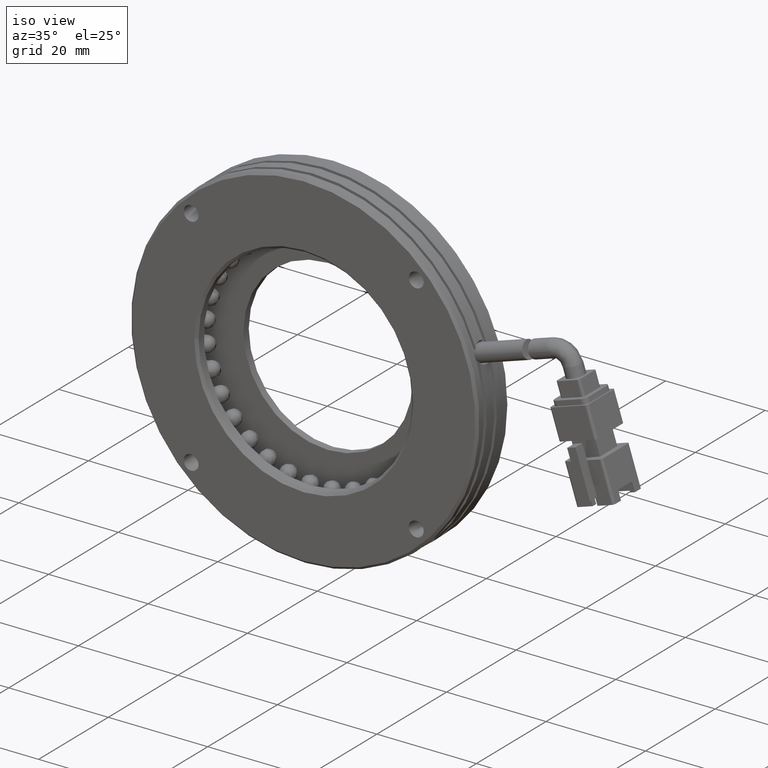
[diagram: clean part render]
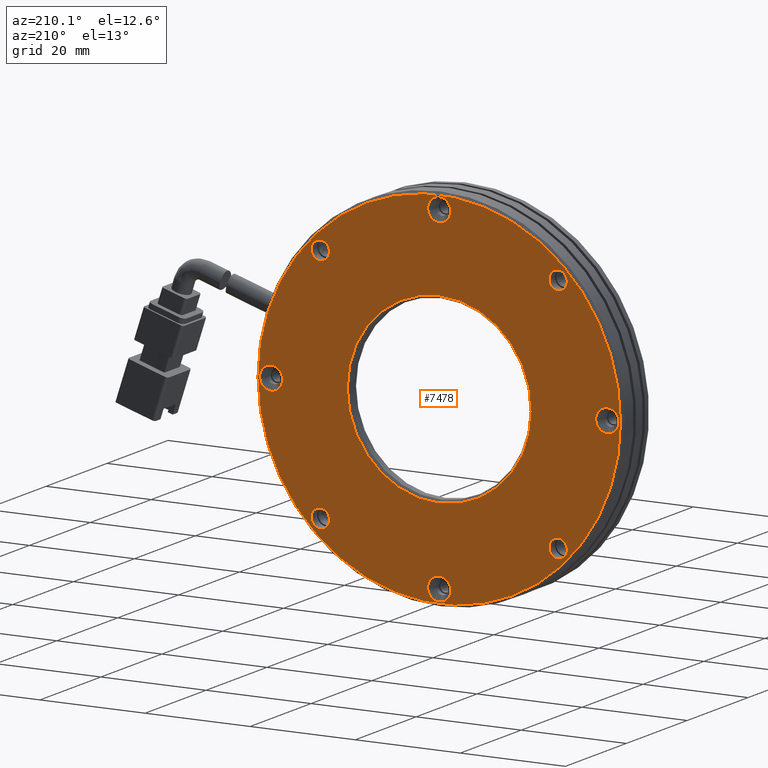
[diagram: tour spotlight — one face highlighted and labeled with its STEP entity id]
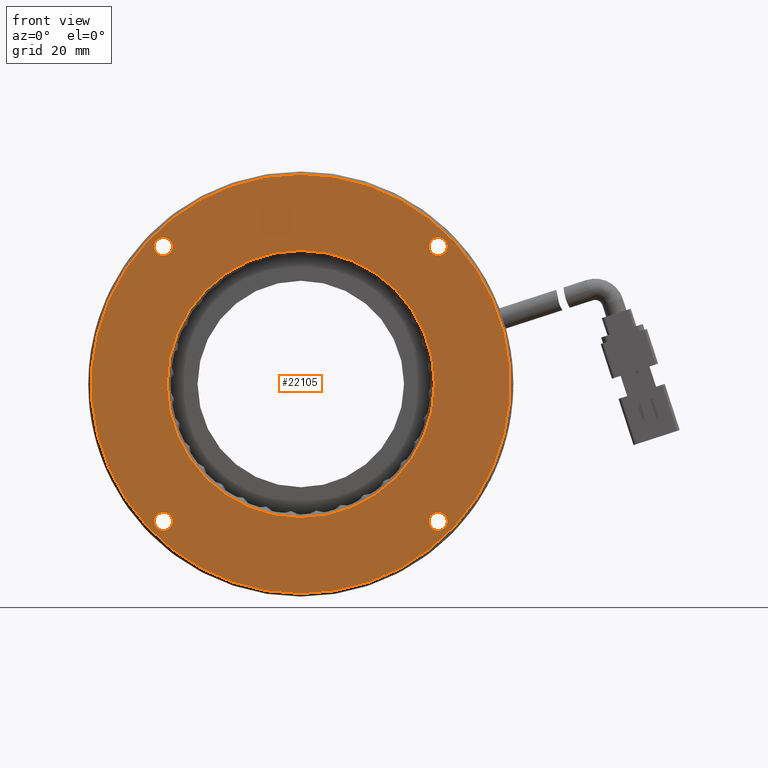
[diagram: tour spotlight — one face highlighted and labeled with its STEP entity id]
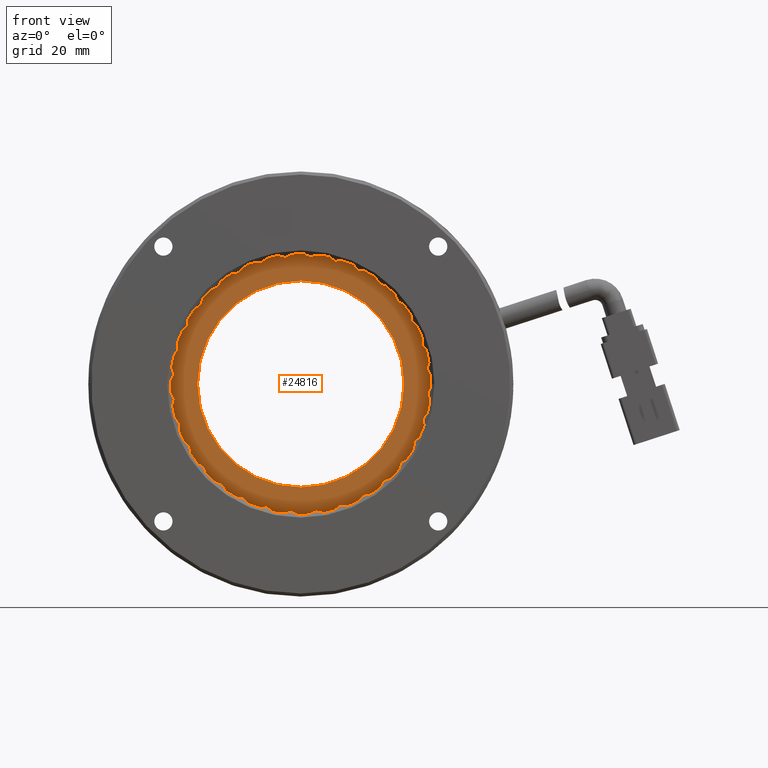
[diagram: tour spotlight — one face highlighted and labeled with its STEP entity id]
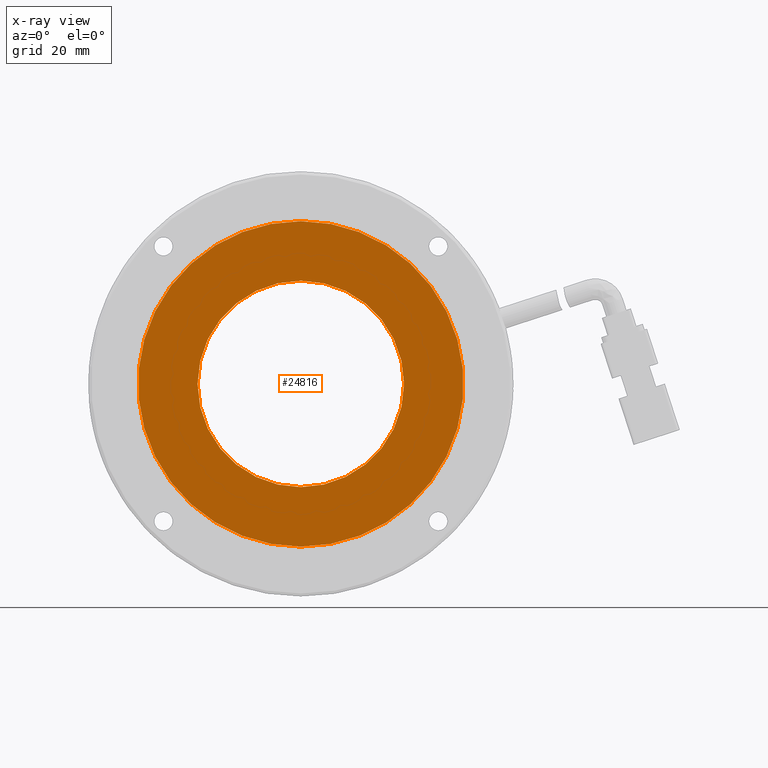
[diagram: x-ray of the same camera — body ghosted, this tour face saturated]
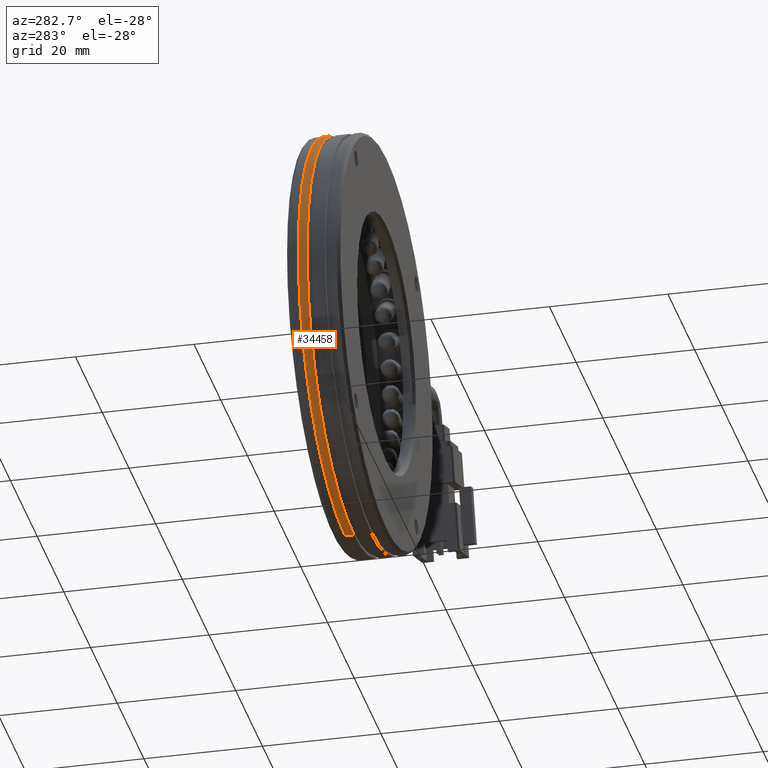
[diagram: tour spotlight — one face highlighted and labeled with its STEP entity id]
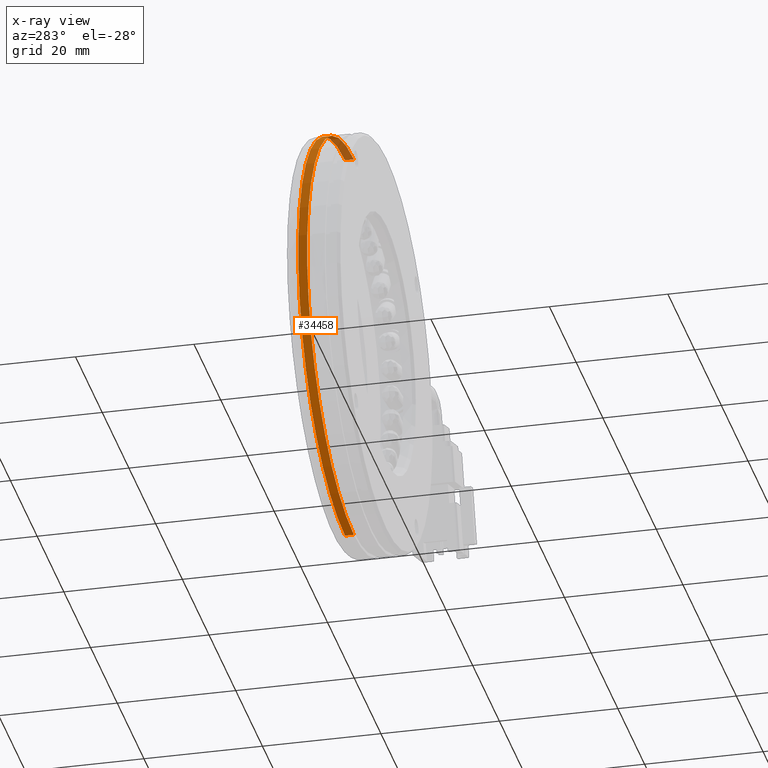
[diagram: x-ray of the same camera — body ghosted, this tour face saturated]
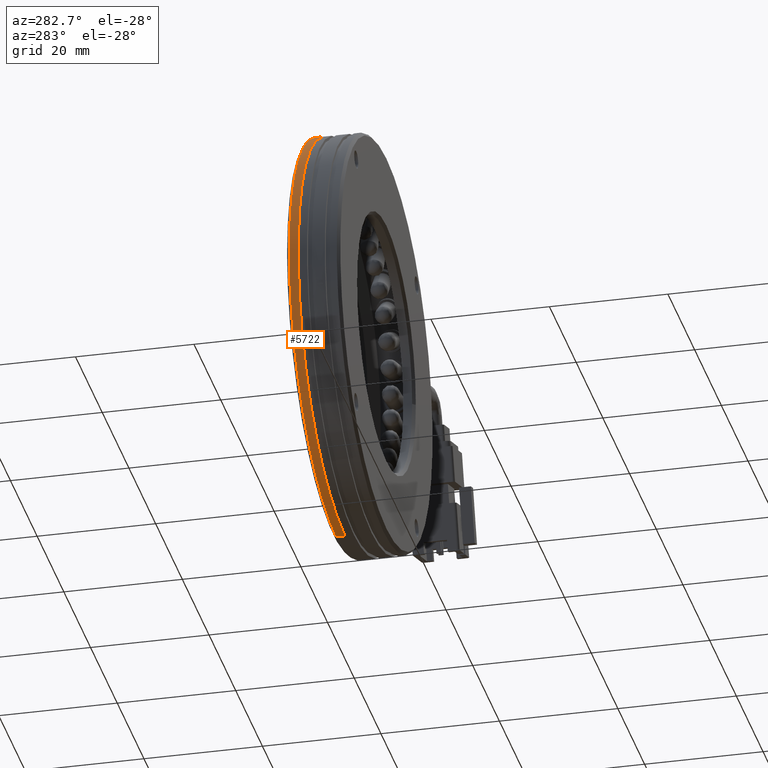
[diagram: tour spotlight — one face highlighted and labeled with its STEP entity id]
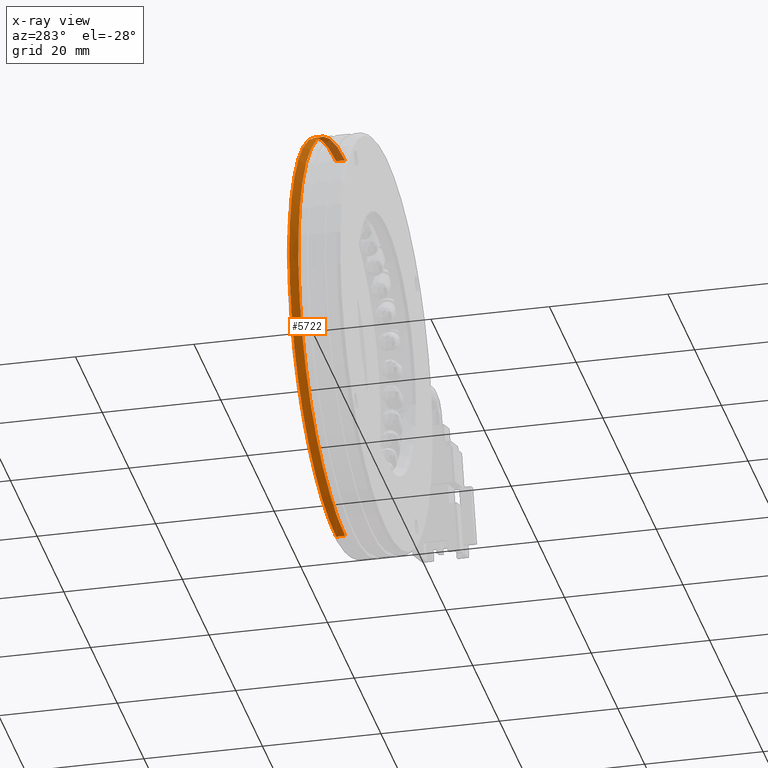
[diagram: x-ray of the same camera — body ghosted, this tour face saturated]
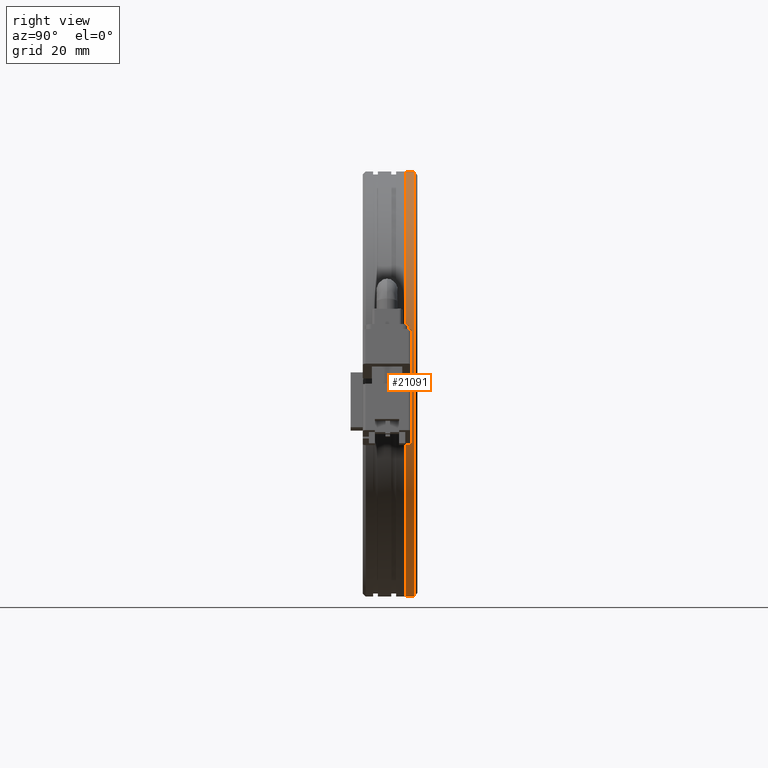
[diagram: tour spotlight — one face highlighted and labeled with its STEP entity id]
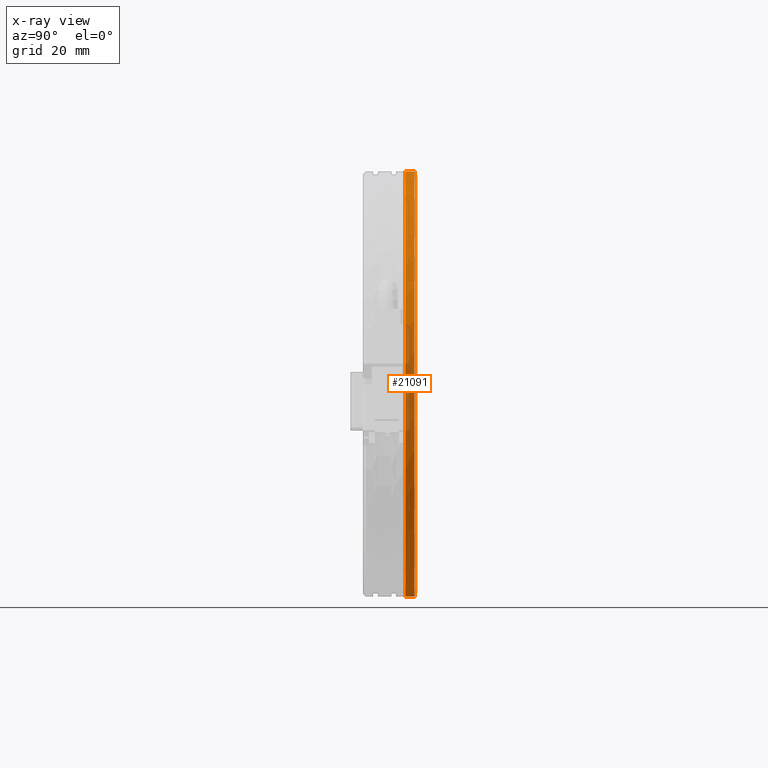
[diagram: x-ray of the same camera — body ghosted, this tour face saturated]
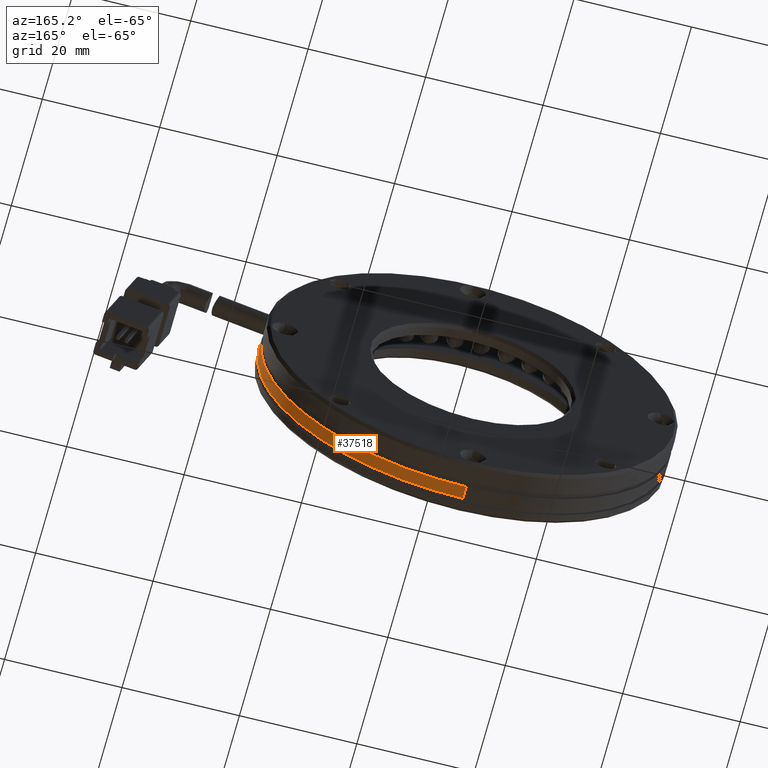
[diagram: tour spotlight — one face highlighted and labeled with its STEP entity id]
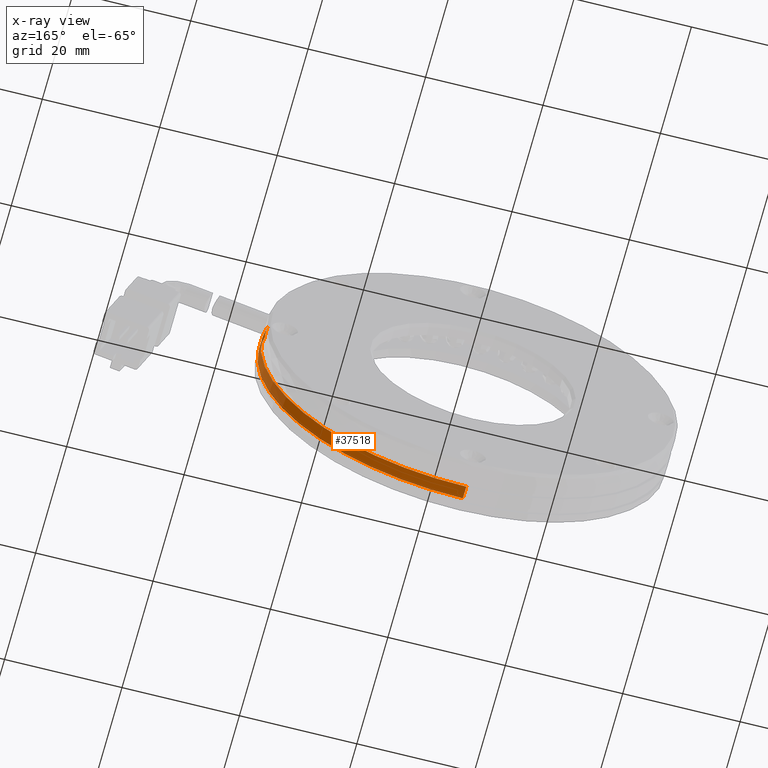
[diagram: x-ray of the same camera — body ghosted, this tour face saturated]
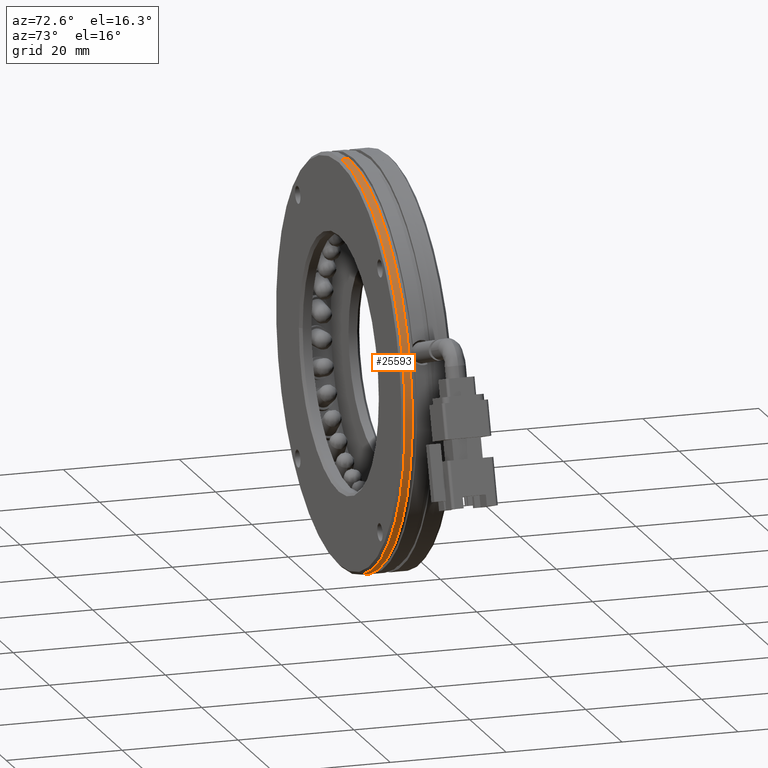
[diagram: tour spotlight — one face highlighted and labeled with its STEP entity id]
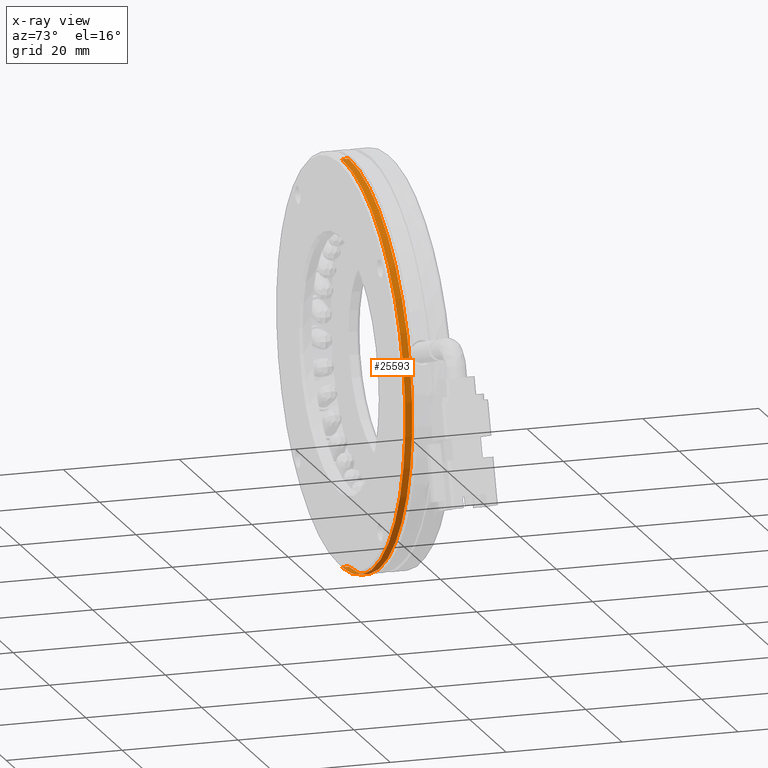
[diagram: x-ray of the same camera — body ghosted, this tour face saturated]
A machine part: a face-by-face anatomy tour. The part has 771 B-rep faces; the first image is the clean iso view, then the 8 largest visible faces are spotlighted one at a time (largest first), each with its STEP entity span.

Face 1 — auxiliary view, entity #7478. In plain terms, the highlighted planar face has unit normal (0, -1, 0).
Definition (entity closure, byte-faithful):
#110 = DIRECTION ( 'NONE',  ( -1.982541115402065400E-016, -1.000000000000000000, 0.0000000000000000000 ) ) ;
#143 = VERTEX_POINT ( 'NONE', #33336 ) ;
#212 = AXIS2_PLACEMENT_3D ( 'NONE', #7293, #29026, #10388 ) ;
#552 = CIRCLE ( 'NONE', #212, 2.199999999977081600 ) ;
#564 = CARTESIAN_POINT ( 'NONE',  ( -37.70929214490434600, 13.26020291534246800, -2.199999999959364700 ) ) ;
#943 = DIRECTION ( 'NONE',  ( 0.0000000000000000000, 0.0000000000000000000, 1.000000000000000000 ) ) ;
#1103 = DIRECTION ( 'NONE',  ( -0.0000000000000000000, 1.000000000000000000, 0.0000000000000000000 ) ) ;
#1303 = FACE_OUTER_BOUND ( 'NONE', #31803, .T. ) ;
#1769 = CIRCLE ( 'NONE', #23377, 17.50000000000000700 ) ;
#2228 = DIRECTION ( 'NONE',  ( 0.0000000000000000000, 0.0000000000000000000, 1.000000000000000000 ) ) ;
#2298 = EDGE_CURVE ( 'NONE', #16188, #25205, #18370, .T. ) ;
#2355 = AXIS2_PLACEMENT_3D ( 'NONE', #4401, #26062, #7508 ) ;
#2577 = ORIENTED_EDGE ( 'NONE', *, *, #30779, .F. ) ;
#2722 = DIRECTION ( 'NONE',  ( 0.0000000000000000000, 0.0000000000000000000, 1.000000000000000000 ) ) ;
#2983 = VERTEX_POINT ( 'NONE', #32999 ) ;
#3518 = CARTESIAN_POINT ( 'NONE',  ( 16.91812485306521900, 13.26020291540423700, 24.37741699796944800 ) ) ;
#3852 = VERTEX_POINT ( 'NONE', #38358 ) ;
#3877 = DIRECTION ( 'NONE',  ( -1.982541115402065400E-016, -1.000000000000000000, 0.0000000000000000000 ) ) ;
#4401 = CARTESIAN_POINT ( 'NONE',  ( -5.709292144904676300, 13.26020291539931200, 31.99999999999997900 ) ) ;
#4536 = EDGE_LOOP ( 'NONE', ( #10967, #6340 ) ) ;
#4547 = ORIENTED_EDGE ( 'NONE', *, *, #21877, .F. ) ;
#4617 = DIRECTION ( 'NONE',  ( -0.0000000000000000000, 1.000000000000000000, -0.0000000000000000000 ) ) ;
#4657 = CARTESIAN_POINT ( 'NONE',  ( -5.709292144904231300, 13.26020291539931200, -32.00000000000002100 ) ) ;
#4795 = CARTESIAN_POINT ( 'NONE',  ( -37.70929214490434600, 13.26020291534246800, 2.199999999959324700 ) ) ;
#4802 = CIRCLE ( 'NONE', #36469, 1.749999999999991100 ) ;
#5172 = VERTEX_POINT ( 'NONE', #38534 ) ;
#6042 = ORIENTED_EDGE ( 'NONE', *, *, #27675, .F. ) ;
#6340 = ORIENTED_EDGE ( 'NONE', *, *, #2298, .F. ) ;
#6924 = ORIENTED_EDGE ( 'NONE', *, *, #19580, .F. ) ;
#6959 = ORIENTED_EDGE ( 'NONE', *, *, #15343, .F. ) ;
#7293 = CARTESIAN_POINT ( 'NONE',  ( -5.709292144904231300, 13.26020291539931200, -32.00000000000002100 ) ) ;
#7478 = ADVANCED_FACE ( 'NONE', ( #18703, #10450, #35296, #34331, #26968, #26007, #17720, #9485, #1303, #33340 ), #37788, .F. ) ;
#7480 = EDGE_LOOP ( 'NONE', ( #6924, #4547 ) ) ;
#7508 = DIRECTION ( 'NONE',  ( 0.0000000000000000000, 0.0000000000000000000, 1.000000000000000000 ) ) ;
#7594 = ORIENTED_EDGE ( 'NONE', *, *, #13458, .F. ) ;
#7730 = DIRECTION ( 'NONE',  ( 0.0000000000000000000, 0.0000000000000000000, 1.000000000000000000 ) ) ;
#7772 = DIRECTION ( 'NONE',  ( -0.0000000000000000000, 1.000000000000000000, 0.0000000000000000000 ) ) ;
#7864 = CARTESIAN_POINT ( 'NONE',  ( -37.70929214490434600, 13.26020291534246800, -1.994931997373328200E-014 ) ) ;
#7972 = VERTEX_POINT ( 'NONE', #18771 ) ;
#8416 = EDGE_CURVE ( 'NONE', #143, #36141, #30378, .T. ) ;
#8705 = EDGE_CURVE ( 'NONE', #35353, #13213, #17687, .T. ) ;
#8878 = EDGE_CURVE ( 'NONE', #13213, #35353, #18168, .T. ) ;
#8959 = EDGE_CURVE ( 'NONE', #12107, #23204, #10384, .T. ) ;
#9250 = CIRCLE ( 'NONE', #13845, 1.749999999999991100 ) ;
#9320 = CARTESIAN_POINT ( 'NONE',  ( 28.79070785509566100, 13.26020291540425900, -2.081668171172168500E-014 ) ) ;
#9357 = ORIENTED_EDGE ( 'NONE', *, *, #25839, .F. ) ;
#9438 = ORIENTED_EDGE ( 'NONE', *, *, #16494, .F. ) ;
#9485 = FACE_BOUND ( 'NONE', #19047, .T. ) ;
#10035 = DIRECTION ( 'NONE',  ( -0.0000000000000000000, 1.000000000000000000, -0.0000000000000000000 ) ) ;
#10040 = CARTESIAN_POINT ( 'NONE',  ( 26.29070785509565800, 13.26020291534246800, -2.199999999958921500 ) ) ;
#10157 = AXIS2_PLACEMENT_3D ( 'NONE', #27124, #26962, #25369 ) ;
#10384 = CIRCLE ( 'NONE', #2355, 2.199999999998453000 ) ;
#10388 = DIRECTION ( 'NONE',  ( 0.0000000000000000000, 0.0000000000000000000, 1.000000000000000000 ) ) ;
#10450 = FACE_BOUND ( 'NONE', #40018, .T. ) ;
#10888 = DIRECTION ( 'NONE',  ( -0.0000000000000000000, 1.000000000000000000, 0.0000000000000000000 ) ) ;
#10962 = DIRECTION ( 'NONE',  ( 0.0000000000000000000, 0.0000000000000000000, 1.000000000000000000 ) ) ;
#10967 = ORIENTED_EDGE ( 'NONE', *, *, #20108, .F. ) ;
#11264 = DIRECTION ( 'NONE',  ( -0.0000000000000000000, 1.000000000000000000, -0.0000000000000000000 ) ) ;
#11334 = AXIS2_PLACEMENT_3D ( 'NONE', #32444, #13777, #35534 ) ;
#11360 = AXIS2_PLACEMENT_3D ( 'NONE', #22400, #3877, #25559 ) ;
#11403 = CARTESIAN_POINT ( 'NONE',  ( -28.33670914287390000, 13.26020291540423700, 22.62741699796946200 ) ) ;
#12107 = VERTEX_POINT ( 'NONE', #31218 ) ;
#12117 = ORIENTED_EDGE ( 'NONE', *, *, #12918, .F. ) ;
#12912 = CIRCLE ( 'NONE', #31623, 17.50000000000000700 ) ;
#12918 = EDGE_CURVE ( 'NONE', #40130, #12931, #23755, .T. ) ;
#12931 = VERTEX_POINT ( 'NONE', #4795 ) ;
#12988 = DIRECTION ( 'NONE',  ( 0.0000000000000000000, -1.000000000000000000, 0.0000000000000000000 ) ) ;
#13021 = CIRCLE ( 'NONE', #22403, 2.199999999959344700 ) ;
#13213 = VERTEX_POINT ( 'NONE', #9320 ) ;
#13446 = CARTESIAN_POINT ( 'NONE',  ( -28.33670914287374700, 13.26020291540423700, -22.62741699796966100 ) ) ;
#13458 = EDGE_CURVE ( 'NONE', #36141, #143, #39791, .T. ) ;
#13759 = ORIENTED_EDGE ( 'NONE', *, *, #8416, .F. ) ;
#13777 = DIRECTION ( 'NONE',  ( -0.0000000000000000000, 1.000000000000000000, 0.0000000000000000000 ) ) ;
#13845 = AXIS2_PLACEMENT_3D ( 'NONE', #13446, #35233, #16564 ) ;
#13957 = CIRCLE ( 'NONE', #16700, 2.199999999959123100 ) ;
#14539 = DIRECTION ( 'NONE',  ( 0.0000000000000000000, 0.0000000000000000000, 1.000000000000000000 ) ) ;
#15312 = CARTESIAN_POINT ( 'NONE',  ( 16.91812485306537200, 13.26020291540423700, -22.62741699796934800 ) ) ;
#15343 = EDGE_CURVE ( 'NONE', #5172, #19427, #9250, .T. ) ;
#16188 = VERTEX_POINT ( 'NONE', #34915 ) ;
#16494 = EDGE_CURVE ( 'NONE', #26678, #7972, #30204, .T. ) ;
#16522 = VERTEX_POINT ( 'NONE', #38753 ) ;
#16564 = DIRECTION ( 'NONE',  ( 0.0000000000000000000, 0.0000000000000000000, 1.000000000000000000 ) ) ;
#16700 = AXIS2_PLACEMENT_3D ( 'NONE', #26355, #7772, #29536 ) ;
#16918 = CARTESIAN_POINT ( 'NONE',  ( -28.33670914287390000, 13.26020291540423700, 20.87741699796946500 ) ) ;
#17172 = CARTESIAN_POINT ( 'NONE',  ( -28.33670914287374700, 13.26020291540423700, -20.87741699796966800 ) ) ;
#17687 = CIRCLE ( 'NONE', #26701, 34.50000000000000000 ) ;
#17720 = FACE_BOUND ( 'NONE', #28343, .T. ) ;
#17841 = AXIS2_PLACEMENT_3D ( 'NONE', #11403, #33203, #14539 ) ;
#18168 = CIRCLE ( 'NONE', #11360, 34.50000000000000000 ) ;
#18370 = CIRCLE ( 'NONE', #10157, 1.749999999999991100 ) ;
#18407 = DIRECTION ( 'NONE',  ( 0.0000000000000000000, 0.0000000000000000000, 1.000000000000000000 ) ) ;
#18611 = CARTESIAN_POINT ( 'NONE',  ( -5.709292144904342300, 13.26020291540426600, -2.081668171172168500E-014 ) ) ;
#18628 = EDGE_LOOP ( 'NONE', ( #13759, #7594 ) ) ;
#18703 = FACE_BOUND ( 'NONE', #7480, .T. ) ;
#18771 = CARTESIAN_POINT ( 'NONE',  ( -5.709292144904231300, 13.26020291539931200, -34.19999999997710200 ) ) ;
#19047 = EDGE_LOOP ( 'NONE', ( #34322, #12117 ) ) ;
#19126 = ORIENTED_EDGE ( 'NONE', *, *, #28634, .F. ) ;
#19427 = VERTEX_POINT ( 'NONE', #17172 ) ;
#19436 = DIRECTION ( 'NONE',  ( -0.0000000000000000000, 1.000000000000000000, 0.0000000000000000000 ) ) ;
#19508 = VERTEX_POINT ( 'NONE', #23970 ) ;
#19576 = AXIS2_PLACEMENT_3D ( 'NONE', #15312, #37112, #18407 ) ;
#19580 = EDGE_CURVE ( 'NONE', #2983, #3852, #34525, .T. ) ;
#19621 = CARTESIAN_POINT ( 'NONE',  ( 26.29070785509565800, 13.26020291534246800, 2.016616040823038200E-013 ) ) ;
#19866 = EDGE_CURVE ( 'NONE', #12931, #40130, #13021, .T. ) ;
#20108 = EDGE_CURVE ( 'NONE', #25205, #16188, #4802, .T. ) ;
#20722 = DIRECTION ( 'NONE',  ( -0.0000000000000000000, 1.000000000000000000, 0.0000000000000000000 ) ) ;
#21226 = DIRECTION ( 'NONE',  ( -0.0000000000000000000, 1.000000000000000000, -0.0000000000000000000 ) ) ;
#21547 = ORIENTED_EDGE ( 'NONE', *, *, #8878, .F. ) ;
#21596 = EDGE_CURVE ( 'NONE', #16522, #31588, #12912, .T. ) ;
#21722 = DIRECTION ( 'NONE',  ( 1.000000000000000000, -2.011273595335428600E-016, 0.0000000000000000000 ) ) ;
#21848 = AXIS2_PLACEMENT_3D ( 'NONE', #39939, #21226, #2722 ) ;
#21871 = AXIS2_PLACEMENT_3D ( 'NONE', #28673, #10035, #31864 ) ;
#21877 = EDGE_CURVE ( 'NONE', #3852, #2983, #31900, .T. ) ;
#22225 = CARTESIAN_POINT ( 'NONE',  ( -5.709292144904231300, 13.26020291539931200, -29.80000000002294100 ) ) ;
#22400 = CARTESIAN_POINT ( 'NONE',  ( -5.709292144904342300, 13.26020291540426600, -2.081668171172168500E-014 ) ) ;
#22403 = AXIS2_PLACEMENT_3D ( 'NONE', #38151, #19436, #943 ) ;
#22738 = DIRECTION ( 'NONE',  ( 0.0000000000000000000, 0.0000000000000000000, 1.000000000000000000 ) ) ;
#22810 = CARTESIAN_POINT ( 'NONE',  ( -40.20929214490434600, 13.26020291540427100, -1.656103408468463200E-014 ) ) ;
#23119 = AXIS2_PLACEMENT_3D ( 'NONE', #23153, #4617, #26260 ) ;
#23153 = CARTESIAN_POINT ( 'NONE',  ( -28.33670914287390000, 13.26020291540423700, 22.62741699796946200 ) ) ;
#23204 = VERTEX_POINT ( 'NONE', #34828 ) ;
#23377 = AXIS2_PLACEMENT_3D ( 'NONE', #39440, #20722, #2228 ) ;
#23755 = CIRCLE ( 'NONE', #30461, 2.199999999959344700 ) ;
#23970 = CARTESIAN_POINT ( 'NONE',  ( 26.29070785509565800, 13.26020291534246800, 2.199999999959324700 ) ) ;
#24587 = EDGE_CURVE ( 'NONE', #31588, #16522, #1769, .T. ) ;
#25205 = VERTEX_POINT ( 'NONE', #3518 ) ;
#25257 = CIRCLE ( 'NONE', #36341, 2.199999999959123100 ) ;
#25369 = DIRECTION ( 'NONE',  ( 0.0000000000000000000, 0.0000000000000000000, 1.000000000000000000 ) ) ;
#25559 = DIRECTION ( 'NONE',  ( 1.000000000000000000, -2.011273595335428600E-016, 0.0000000000000000000 ) ) ;
#25839 = EDGE_CURVE ( 'NONE', #19427, #5172, #30333, .T. ) ;
#25890 = ORIENTED_EDGE ( 'NONE', *, *, #8705, .F. ) ;
#26007 = FACE_BOUND ( 'NONE', #33737, .T. ) ;
#26062 = DIRECTION ( 'NONE',  ( -0.0000000000000000000, 1.000000000000000000, 0.0000000000000000000 ) ) ;
#26260 = DIRECTION ( 'NONE',  ( 0.0000000000000000000, 0.0000000000000000000, 1.000000000000000000 ) ) ;
#26299 = DIRECTION ( 'NONE',  ( -0.0000000000000000000, 1.000000000000000000, 0.0000000000000000000 ) ) ;
#26355 = CARTESIAN_POINT ( 'NONE',  ( 26.29070785509565800, 13.26020291534246800, 2.016616040823038200E-013 ) ) ;
#26678 = VERTEX_POINT ( 'NONE', #22225 ) ;
#26701 = AXIS2_PLACEMENT_3D ( 'NONE', #18611, #110, #21722 ) ;
#26962 = DIRECTION ( 'NONE',  ( -0.0000000000000000000, 1.000000000000000000, -0.0000000000000000000 ) ) ;
#26968 = FACE_BOUND ( 'NONE', #33443, .T. ) ;
#27124 = CARTESIAN_POINT ( 'NONE',  ( 16.91812485306521900, 13.26020291540423700, 22.62741699796945800 ) ) ;
#27675 = EDGE_CURVE ( 'NONE', #19508, #29353, #25257, .T. ) ;
#27681 = EDGE_CURVE ( 'NONE', #7972, #26678, #552, .T. ) ;
#28343 = EDGE_LOOP ( 'NONE', ( #9438, #29431 ) ) ;
#28502 = AXIS2_PLACEMENT_3D ( 'NONE', #4657, #26299, #7730 ) ;
#28634 = EDGE_CURVE ( 'NONE', #29353, #19508, #13957, .T. ) ;
#28673 = CARTESIAN_POINT ( 'NONE',  ( -28.33670914287374700, 13.26020291540423700, -22.62741699796966100 ) ) ;
#29026 = DIRECTION ( 'NONE',  ( -0.0000000000000000000, 1.000000000000000000, 0.0000000000000000000 ) ) ;
#29353 = VERTEX_POINT ( 'NONE', #10040 ) ;
#29431 = ORIENTED_EDGE ( 'NONE', *, *, #27681, .F. ) ;
#29536 = DIRECTION ( 'NONE',  ( 0.0000000000000000000, 0.0000000000000000000, 1.000000000000000000 ) ) ;
#29553 = CARTESIAN_POINT ( 'NONE',  ( -5.709292144904342300, 13.26020291540425200, -2.081668171172168500E-014 ) ) ;
#29624 = DIRECTION ( 'NONE',  ( -0.0000000000000000000, 1.000000000000000000, 0.0000000000000000000 ) ) ;
#29958 = CARTESIAN_POINT ( 'NONE',  ( 16.91812485306521900, 13.26020291540423700, 22.62741699796945800 ) ) ;
#30204 = CIRCLE ( 'NONE', #28502, 2.199999999977081600 ) ;
#30333 = CIRCLE ( 'NONE', #21871, 1.749999999999991100 ) ;
#30378 = CIRCLE ( 'NONE', #17841, 1.749999999999994700 ) ;
#30461 = AXIS2_PLACEMENT_3D ( 'NONE', #7864, #29624, #10962 ) ;
#30779 = EDGE_CURVE ( 'NONE', #23204, #12107, #37560, .T. ) ;
#31218 = CARTESIAN_POINT ( 'NONE',  ( -5.709292144904676300, 13.26020291539931200, 34.19999999999843300 ) ) ;
#31588 = VERTEX_POINT ( 'NONE', #33728 ) ;
#31623 = AXIS2_PLACEMENT_3D ( 'NONE', #29553, #10888, #32678 ) ;
#31679 = CARTESIAN_POINT ( 'NONE',  ( -22.70929214490434600, 13.26020291540425200, -2.081668171172168500E-014 ) ) ;
#31723 = EDGE_LOOP ( 'NONE', ( #33780, #37648 ) ) ;
#31803 = EDGE_LOOP ( 'NONE', ( #21547, #25890 ) ) ;
#31864 = DIRECTION ( 'NONE',  ( 0.0000000000000000000, 0.0000000000000000000, 1.000000000000000000 ) ) ;
#31900 = CIRCLE ( 'NONE', #19576, 1.749999999999991100 ) ;
#32444 = CARTESIAN_POINT ( 'NONE',  ( -5.709292144904676300, 13.26020291539931200, 31.99999999999997900 ) ) ;
#32678 = DIRECTION ( 'NONE',  ( 0.0000000000000000000, 0.0000000000000000000, 1.000000000000000000 ) ) ;
#32999 = CARTESIAN_POINT ( 'NONE',  ( 16.91812485306537200, 13.26020291540423700, -20.87741699796935500 ) ) ;
#33059 = DIRECTION ( 'NONE',  ( 0.0000000000000000000, 0.0000000000000000000, 1.000000000000000000 ) ) ;
#33203 = DIRECTION ( 'NONE',  ( -0.0000000000000000000, 1.000000000000000000, -0.0000000000000000000 ) ) ;
#33336 = CARTESIAN_POINT ( 'NONE',  ( -28.33670914287390000, 13.26020291540423700, 24.37741699796945500 ) ) ;
#33340 = FACE_BOUND ( 'NONE', #31723, .T. ) ;
#33443 = EDGE_LOOP ( 'NONE', ( #36014, #2577 ) ) ;
#33728 = CARTESIAN_POINT ( 'NONE',  ( -5.709292144904342300, 13.26020291540425200, 17.49999999999998900 ) ) ;
#33737 = EDGE_LOOP ( 'NONE', ( #6042, #19126 ) ) ;
#33780 = ORIENTED_EDGE ( 'NONE', *, *, #24587, .F. ) ;
#34322 = ORIENTED_EDGE ( 'NONE', *, *, #19866, .F. ) ;
#34331 = FACE_BOUND ( 'NONE', #4536, .T. ) ;
#34525 = CIRCLE ( 'NONE', #21848, 1.749999999999991100 ) ;
#34784 = DIRECTION ( 'NONE',  ( 0.0000000000000000000, -0.0000000000000000000, -1.000000000000000000 ) ) ;
#34828 = CARTESIAN_POINT ( 'NONE',  ( -5.709292144904676300, 13.26020291539931200, 29.80000000000152800 ) ) ;
#34915 = CARTESIAN_POINT ( 'NONE',  ( 16.91812485306521900, 13.26020291540423700, 20.87741699796946500 ) ) ;
#35233 = DIRECTION ( 'NONE',  ( -0.0000000000000000000, 1.000000000000000000, -0.0000000000000000000 ) ) ;
#35296 = FACE_BOUND ( 'NONE', #18628, .T. ) ;
#35353 = VERTEX_POINT ( 'NONE', #22810 ) ;
#35534 = DIRECTION ( 'NONE',  ( 0.0000000000000000000, 0.0000000000000000000, 1.000000000000000000 ) ) ;
#36014 = ORIENTED_EDGE ( 'NONE', *, *, #8959, .F. ) ;
#36141 = VERTEX_POINT ( 'NONE', #16918 ) ;
#36341 = AXIS2_PLACEMENT_3D ( 'NONE', #19621, #1103, #22738 ) ;
#36469 = AXIS2_PLACEMENT_3D ( 'NONE', #29958, #11264, #33059 ) ;
#37112 = DIRECTION ( 'NONE',  ( -0.0000000000000000000, 1.000000000000000000, -0.0000000000000000000 ) ) ;
#37560 = CIRCLE ( 'NONE', #11334, 2.199999999998453000 ) ;
#37648 = ORIENTED_EDGE ( 'NONE', *, *, #21596, .F. ) ;
#37788 = PLANE ( 'NONE',  #38226 ) ;
#38151 = CARTESIAN_POINT ( 'NONE',  ( -37.70929214490434600, 13.26020291534246800, -1.994931997373328200E-014 ) ) ;
#38226 = AXIS2_PLACEMENT_3D ( 'NONE', #31679, #12988, #34784 ) ;
#38358 = CARTESIAN_POINT ( 'NONE',  ( 16.91812485306537200, 13.26020291540423700, -24.37741699796933800 ) ) ;
#38534 = CARTESIAN_POINT ( 'NONE',  ( -28.33670914287374700, 13.26020291540423700, -24.37741699796965000 ) ) ;
#38753 = CARTESIAN_POINT ( 'NONE',  ( -5.709292144904340600, 13.26020291540425200, -17.50000000000002800 ) ) ;
#39440 = CARTESIAN_POINT ( 'NONE',  ( -5.709292144904342300, 13.26020291540425200, -2.081668171172168500E-014 ) ) ;
#39791 = CIRCLE ( 'NONE', #23119, 1.749999999999994700 ) ;
#39939 = CARTESIAN_POINT ( 'NONE',  ( 16.91812485306537200, 13.26020291540423700, -22.62741699796934800 ) ) ;
#40018 = EDGE_LOOP ( 'NONE', ( #9357, #6959 ) ) ;
#40130 = VERTEX_POINT ( 'NONE', #564 ) ;

Face 2 — front view, entity #22105. In plain terms, the highlighted planar face has unit normal (0, 1, 0).
Definition (entity closure, byte-faithful):
#43 = VERTEX_POINT ( 'NONE', #27115 ) ;
#60 = DIRECTION ( 'NONE',  ( 0.0000000000000000000, 0.0000000000000000000, 1.000000000000000000 ) ) ;
#680 = ORIENTED_EDGE ( 'NONE', *, *, #22191, .F. ) ;
#779 = FACE_BOUND ( 'NONE', #6378, .T. ) ;
#900 = DIRECTION ( 'NONE',  ( 0.0000000000000000000, 0.0000000000000000000, 1.000000000000000000 ) ) ;
#1737 = FACE_BOUND ( 'NONE', #4508, .T. ) ;
#2397 = DIRECTION ( 'NONE',  ( -0.0000000000000000000, 1.000000000000000000, 0.0000000000000000000 ) ) ;
#2484 = CARTESIAN_POINT ( 'NONE',  ( -28.33670914287428400, 4.260202915404256900, 24.12741699796931600 ) ) ;
#3098 = VERTEX_POINT ( 'NONE', #2484 ) ;
#3195 = CARTESIAN_POINT ( 'NONE',  ( 16.91812485306483900, 4.260202915404256900, 24.12741699796962900 ) ) ;
#3380 = VERTEX_POINT ( 'NONE', #3195 ) ;
#3624 = VERTEX_POINT ( 'NONE', #35357 ) ;
#3638 = ORIENTED_EDGE ( 'NONE', *, *, #38736, .F. ) ;
#4332 = AXIS2_PLACEMENT_3D ( 'NONE', #13897, #35655, #16997 ) ;
#4508 = EDGE_LOOP ( 'NONE', ( #3638, #680 ) ) ;
#4527 = CIRCLE ( 'NONE', #4332, 1.499999999999990900 ) ;
#4624 = CARTESIAN_POINT ( 'NONE',  ( -28.33670914287380800, 4.260202915404256900, -22.62741699796980300 ) ) ;
#4822 = CARTESIAN_POINT ( 'NONE',  ( 16.29070785509543000, 4.260202915404253300, 0.0000000000000000000 ) ) ;
#5124 = AXIS2_PLACEMENT_3D ( 'NONE', #29975, #11293, #17091 ) ;
#5168 = CARTESIAN_POINT ( 'NONE',  ( -27.70929214490455900, 4.260202915404260400, 2.694222958124176400E-015 ) ) ;
#5242 = DIRECTION ( 'NONE',  ( -1.577021341797097600E-016, -1.000000000000000000, 0.0000000000000000000 ) ) ;
#5398 = CARTESIAN_POINT ( 'NONE',  ( -28.33670914287380800, 4.260202915404256900, -22.62741699796980300 ) ) ;
#5437 = CARTESIAN_POINT ( 'NONE',  ( -28.33670914287380800, 4.260202915404256900, -24.12741699796979200 ) ) ;
#6060 = EDGE_CURVE ( 'NONE', #12273, #43, #18964, .T. ) ;
#6378 = EDGE_LOOP ( 'NONE', ( #38965, #37718 ) ) ;
#6890 = ORIENTED_EDGE ( 'NONE', *, *, #37865, .F. ) ;
#7698 = DIRECTION ( 'NONE',  ( 0.0000000000000000000, -1.000000000000000000, 0.0000000000000000000 ) ) ;
#7705 = DIRECTION ( 'NONE',  ( 0.0000000000000000000, 0.0000000000000000000, 1.000000000000000000 ) ) ;
#8497 = DIRECTION ( 'NONE',  ( 0.0000000000000000000, 0.0000000000000000000, 1.000000000000000000 ) ) ;
#8548 = AXIS2_PLACEMENT_3D ( 'NONE', #37247, #18558, #60 ) ;
#9717 = AXIS2_PLACEMENT_3D ( 'NONE', #28906, #10266, #32071 ) ;
#10015 = CIRCLE ( 'NONE', #28597, 21.99999999999999600 ) ;
#10266 = DIRECTION ( 'NONE',  ( 0.0000000000000000000, 1.000000000000000000, 0.0000000000000000000 ) ) ;
#10646 = AXIS2_PLACEMENT_3D ( 'NONE', #20894, #2397, #24062 ) ;
#10650 = AXIS2_PLACEMENT_3D ( 'NONE', #5398, #27076, #8497 ) ;
#11017 = VERTEX_POINT ( 'NONE', #23218 ) ;
#11176 = DIRECTION ( 'NONE',  ( 0.0000000000000000000, -1.000000000000000000, 0.0000000000000000000 ) ) ;
#11293 = DIRECTION ( 'NONE',  ( 0.0000000000000000000, -1.000000000000000000, 0.0000000000000000000 ) ) ;
#11655 = VERTEX_POINT ( 'NONE', #22207 ) ;
#11750 = AXIS2_PLACEMENT_3D ( 'NONE', #28321, #28262, #28127 ) ;
#11966 = CIRCLE ( 'NONE', #8548, 1.499999999999994400 ) ;
#12273 = VERTEX_POINT ( 'NONE', #19420 ) ;
#13084 = VERTEX_POINT ( 'NONE', #5437 ) ;
#13662 = DIRECTION ( 'NONE',  ( -1.577021341797097600E-016, -1.000000000000000000, 0.0000000000000000000 ) ) ;
#13730 = CIRCLE ( 'NONE', #10650, 1.499999999999990900 ) ;
#13897 = CARTESIAN_POINT ( 'NONE',  ( 16.91812485306483900, 4.260202915404256900, 22.62741699796964000 ) ) ;
#15300 = ORIENTED_EDGE ( 'NONE', *, *, #37544, .F. ) ;
#15469 = CARTESIAN_POINT ( 'NONE',  ( -28.33670914287428400, 4.260202915404256900, 21.12741699796932700 ) ) ;
#15807 = EDGE_LOOP ( 'NONE', ( #27748, #18039 ) ) ;
#16246 = FACE_OUTER_BOUND ( 'NONE', #15807, .T. ) ;
#16613 = EDGE_LOOP ( 'NONE', ( #31125, #34480 ) ) ;
#16997 = DIRECTION ( 'NONE',  ( 0.0000000000000000000, 0.0000000000000000000, 1.000000000000000000 ) ) ;
#17091 = DIRECTION ( 'NONE',  ( 0.0000000000000000000, 0.0000000000000000000, 1.000000000000000000 ) ) ;
#17195 = FACE_BOUND ( 'NONE', #22391, .T. ) ;
#17336 = CIRCLE ( 'NONE', #10646, 34.50000000000004300 ) ;
#18039 = ORIENTED_EDGE ( 'NONE', *, *, #20231, .F. ) ;
#18558 = DIRECTION ( 'NONE',  ( 0.0000000000000000000, -1.000000000000000000, 0.0000000000000000000 ) ) ;
#18964 = CIRCLE ( 'NONE', #11750, 1.499999999999990900 ) ;
#19380 = DIRECTION ( 'NONE',  ( -0.0000000000000000000, 1.000000000000000000, 0.0000000000000000000 ) ) ;
#19420 = CARTESIAN_POINT ( 'NONE',  ( 16.91812485306530800, 4.260202915404256900, -21.12741699796917400 ) ) ;
#19452 = AXIS2_PLACEMENT_3D ( 'NONE', #29860, #11176, #32965 ) ;
#20231 = EDGE_CURVE ( 'NONE', #3624, #22121, #17336, .T. ) ;
#20894 = CARTESIAN_POINT ( 'NONE',  ( -5.709292144904565300, 4.260202915404256900, 0.0000000000000000000 ) ) ;
#21008 = ORIENTED_EDGE ( 'NONE', *, *, #27588, .F. ) ;
#21063 = VERTEX_POINT ( 'NONE', #5168 ) ;
#22105 = ADVANCED_FACE ( 'NONE', ( #779, #17195, #1737, #32800, #24498, #16246 ), #28767, .F. ) ;
#22121 = VERTEX_POINT ( 'NONE', #32206 ) ;
#22191 = EDGE_CURVE ( 'NONE', #13084, #11017, #36893, .T. ) ;
#22207 = CARTESIAN_POINT ( 'NONE',  ( 16.91812485306483900, 4.260202915404256900, 21.12741699796964700 ) ) ;
#22391 = EDGE_LOOP ( 'NONE', ( #6890, #15300 ) ) ;
#23120 = CIRCLE ( 'NONE', #38686, 21.99999999999999600 ) ;
#23218 = CARTESIAN_POINT ( 'NONE',  ( -28.33670914287380800, 4.260202915404256900, -21.12741699796981000 ) ) ;
#23788 = CARTESIAN_POINT ( 'NONE',  ( -5.709292144904565300, 4.260202915404256900, 0.0000000000000000000 ) ) ;
#23976 = VERTEX_POINT ( 'NONE', #4822 ) ;
#24062 = DIRECTION ( 'NONE',  ( 0.0000000000000000000, 0.0000000000000000000, 1.000000000000000000 ) ) ;
#24088 = CIRCLE ( 'NONE', #19452, 1.499999999999994400 ) ;
#24498 = FACE_BOUND ( 'NONE', #16613, .T. ) ;
#24768 = CIRCLE ( 'NONE', #5124, 1.499999999999990900 ) ;
#26263 = CARTESIAN_POINT ( 'NONE',  ( 16.91812485306483900, 4.260202915404256900, 22.62741699796964000 ) ) ;
#26270 = DIRECTION ( 'NONE',  ( 0.0000000000000000000, -1.000000000000000000, 0.0000000000000000000 ) ) ;
#26915 = DIRECTION ( 'NONE',  ( 1.000000000000000000, -1.577021341797097600E-016, 0.0000000000000000000 ) ) ;
#26939 = CIRCLE ( 'NONE', #36013, 1.499999999999990900 ) ;
#27076 = DIRECTION ( 'NONE',  ( 0.0000000000000000000, -1.000000000000000000, 0.0000000000000000000 ) ) ;
#27115 = CARTESIAN_POINT ( 'NONE',  ( 16.91812485306530800, 4.260202915404256900, -24.12741699796915600 ) ) ;
#27349 = AXIS2_PLACEMENT_3D ( 'NONE', #38097, #19380, #900 ) ;
#27588 = EDGE_CURVE ( 'NONE', #43, #12273, #24768, .T. ) ;
#27748 = ORIENTED_EDGE ( 'NONE', *, *, #33448, .F. ) ;
#28127 = DIRECTION ( 'NONE',  ( 0.0000000000000000000, 0.0000000000000000000, 1.000000000000000000 ) ) ;
#28203 = EDGE_LOOP ( 'NONE', ( #30224, #21008 ) ) ;
#28262 = DIRECTION ( 'NONE',  ( 0.0000000000000000000, -1.000000000000000000, 0.0000000000000000000 ) ) ;
#28321 = CARTESIAN_POINT ( 'NONE',  ( 16.91812485306530800, 4.260202915404256900, -22.62741699796916700 ) ) ;
#28597 = AXIS2_PLACEMENT_3D ( 'NONE', #32340, #13662, #35435 ) ;
#28767 = PLANE ( 'NONE',  #9717 ) ;
#28906 = CARTESIAN_POINT ( 'NONE',  ( -40.70929214490455900, 4.260202915404256900, 0.0000000000000000000 ) ) ;
#28940 = EDGE_CURVE ( 'NONE', #21063, #23976, #23120, .T. ) ;
#29450 = DIRECTION ( 'NONE',  ( 0.0000000000000000000, 0.0000000000000000000, 1.000000000000000000 ) ) ;
#29802 = VERTEX_POINT ( 'NONE', #15469 ) ;
#29860 = CARTESIAN_POINT ( 'NONE',  ( -28.33670914287428400, 4.260202915404256900, 22.62741699796932300 ) ) ;
#29975 = CARTESIAN_POINT ( 'NONE',  ( 16.91812485306530800, 4.260202915404256900, -22.62741699796916700 ) ) ;
#30224 = ORIENTED_EDGE ( 'NONE', *, *, #6060, .F. ) ;
#31125 = ORIENTED_EDGE ( 'NONE', *, *, #37793, .F. ) ;
#32071 = DIRECTION ( 'NONE',  ( 0.0000000000000000000, -0.0000000000000000000, 1.000000000000000000 ) ) ;
#32206 = CARTESIAN_POINT ( 'NONE',  ( -5.709292144904565300, 4.260202915404256900, 34.50000000000004300 ) ) ;
#32340 = CARTESIAN_POINT ( 'NONE',  ( -5.709292144904565300, 4.260202915404256900, 0.0000000000000000000 ) ) ;
#32658 = AXIS2_PLACEMENT_3D ( 'NONE', #4624, #26270, #7705 ) ;
#32800 = FACE_BOUND ( 'NONE', #28203, .T. ) ;
#32965 = DIRECTION ( 'NONE',  ( 0.0000000000000000000, 0.0000000000000000000, 1.000000000000000000 ) ) ;
#33448 = EDGE_CURVE ( 'NONE', #22121, #3624, #37288, .T. ) ;
#34227 = EDGE_CURVE ( 'NONE', #11655, #3380, #26939, .T. ) ;
#34480 = ORIENTED_EDGE ( 'NONE', *, *, #28940, .F. ) ;
#34916 = EDGE_CURVE ( 'NONE', #3380, #11655, #4527, .T. ) ;
#35357 = CARTESIAN_POINT ( 'NONE',  ( -5.709292144904560800, 4.260202915404256900, -34.50000000000004300 ) ) ;
#35435 = DIRECTION ( 'NONE',  ( 1.000000000000000000, -1.577021341797097600E-016, 0.0000000000000000000 ) ) ;
#35655 = DIRECTION ( 'NONE',  ( 0.0000000000000000000, -1.000000000000000000, 0.0000000000000000000 ) ) ;
#36013 = AXIS2_PLACEMENT_3D ( 'NONE', #26263, #7698, #29450 ) ;
#36893 = CIRCLE ( 'NONE', #32658, 1.499999999999990900 ) ;
#37247 = CARTESIAN_POINT ( 'NONE',  ( -28.33670914287428400, 4.260202915404256900, 22.62741699796932300 ) ) ;
#37288 = CIRCLE ( 'NONE', #27349, 34.50000000000004300 ) ;
#37544 = EDGE_CURVE ( 'NONE', #29802, #3098, #11966, .T. ) ;
#37718 = ORIENTED_EDGE ( 'NONE', *, *, #34227, .F. ) ;
#37793 = EDGE_CURVE ( 'NONE', #23976, #21063, #10015, .T. ) ;
#37865 = EDGE_CURVE ( 'NONE', #3098, #29802, #24088, .T. ) ;
#38097 = CARTESIAN_POINT ( 'NONE',  ( -5.709292144904565300, 4.260202915404256900, 0.0000000000000000000 ) ) ;
#38686 = AXIS2_PLACEMENT_3D ( 'NONE', #23788, #5242, #26915 ) ;
#38736 = EDGE_CURVE ( 'NONE', #11017, #13084, #13730, .T. ) ;
#38965 = ORIENTED_EDGE ( 'NONE', *, *, #34916, .F. ) ;

Face 3 — front view, entity #24816. An x-ray twin of the same camera follows (body ghosted, this face saturated) — the face is partly hidden behind the body. In plain terms, the highlighted planar face has unit normal (0, 1, 0).
Definition (entity closure, byte-faithful):
#579 = PLANE ( 'NONE',  #15600 ) ;
#728 = VERTEX_POINT ( 'NONE', #29379 ) ;
#747 = DIRECTION ( 'NONE',  ( 0.0000000000000000000, 1.000000000000000000, 0.0000000000000000000 ) ) ;
#2129 = DIRECTION ( 'NONE',  ( 0.0000000000000000000, 0.0000000000000000000, -1.000000000000000000 ) ) ;
#2694 = FACE_OUTER_BOUND ( 'NONE', #24684, .T. ) ;
#3442 = CIRCLE ( 'NONE', #6797, 26.80000000000000100 ) ;
#3443 = CARTESIAN_POINT ( 'NONE',  ( -5.709292144904338800, 11.26020291540426400, 26.79999999999997900 ) ) ;
#4033 = ORIENTED_EDGE ( 'NONE', *, *, #14421, .T. ) ;
#5240 = EDGE_CURVE ( 'NONE', #29837, #728, #3442, .T. ) ;
#6797 = AXIS2_PLACEMENT_3D ( 'NONE', #32420, #32284, #32151 ) ;
#8073 = AXIS2_PLACEMENT_3D ( 'NONE', #17553, #39392, #20688 ) ;
#8823 = ORIENTED_EDGE ( 'NONE', *, *, #17893, .F. ) ;
#9901 = FACE_BOUND ( 'NONE', #30399, .T. ) ;
#10362 = VERTEX_POINT ( 'NONE', #23395 ) ;
#12974 = CARTESIAN_POINT ( 'NONE',  ( -29.70929214490434600, 11.26020291540426400, -2.081668171172168500E-014 ) ) ;
#14421 = EDGE_CURVE ( 'NONE', #32188, #10362, #14773, .T. ) ;
#14773 = CIRCLE ( 'NONE', #8073, 17.00000000000000000 ) ;
#15269 = AXIS2_PLACEMENT_3D ( 'NONE', #39348, #20642, #2129 ) ;
#15600 = AXIS2_PLACEMENT_3D ( 'NONE', #12974, #34775, #16106 ) ;
#16106 = DIRECTION ( 'NONE',  ( 0.0000000000000000000, -0.0000000000000000000, 1.000000000000000000 ) ) ;
#16674 = AXIS2_PLACEMENT_3D ( 'NONE', #19231, #747, #22360 ) ;
#16717 = CIRCLE ( 'NONE', #15269, 26.80000000000000100 ) ;
#17553 = CARTESIAN_POINT ( 'NONE',  ( -5.709292144904342300, 11.26020291540426400, -2.081668171172168500E-014 ) ) ;
#17893 = EDGE_CURVE ( 'NONE', #728, #29837, #16717, .T. ) ;
#19231 = CARTESIAN_POINT ( 'NONE',  ( -5.709292144904342300, 11.26020291540426400, -2.081668171172168500E-014 ) ) ;
#20642 = DIRECTION ( 'NONE',  ( 0.0000000000000000000, 1.000000000000000000, 0.0000000000000000000 ) ) ;
#20688 = DIRECTION ( 'NONE',  ( 0.0000000000000000000, 0.0000000000000000000, -1.000000000000000000 ) ) ;
#20789 = EDGE_CURVE ( 'NONE', #10362, #32188, #24706, .T. ) ;
#22360 = DIRECTION ( 'NONE',  ( 0.0000000000000000000, 0.0000000000000000000, -1.000000000000000000 ) ) ;
#23395 = CARTESIAN_POINT ( 'NONE',  ( -5.709292144904342300, 11.26020291540426400, -17.00000000000002100 ) ) ;
#24684 = EDGE_LOOP ( 'NONE', ( #8823, #30594 ) ) ;
#24706 = CIRCLE ( 'NONE', #16674, 17.00000000000000000 ) ;
#24816 = ADVANCED_FACE ( 'NONE', ( #2694, #9901 ), #579, .F. ) ;
#29379 = CARTESIAN_POINT ( 'NONE',  ( -5.709292144904342300, 11.26020291540426400, -26.80000000000002200 ) ) ;
#29837 = VERTEX_POINT ( 'NONE', #3443 ) ;
#30399 = EDGE_LOOP ( 'NONE', ( #38373, #4033 ) ) ;
#30594 = ORIENTED_EDGE ( 'NONE', *, *, #5240, .F. ) ;
#32151 = DIRECTION ( 'NONE',  ( 0.0000000000000000000, 0.0000000000000000000, -1.000000000000000000 ) ) ;
#32188 = VERTEX_POINT ( 'NONE', #32471 ) ;
#32284 = DIRECTION ( 'NONE',  ( 0.0000000000000000000, 1.000000000000000000, 0.0000000000000000000 ) ) ;
#32420 = CARTESIAN_POINT ( 'NONE',  ( -5.709292144904342300, 11.26020291540426400, -2.081668171172168500E-014 ) ) ;
#32471 = CARTESIAN_POINT ( 'NONE',  ( -5.709292144904340600, 11.26020291540426400, 16.99999999999997900 ) ) ;
#34775 = DIRECTION ( 'NONE',  ( 0.0000000000000000000, 1.000000000000000000, 0.0000000000000000000 ) ) ;
#38373 = ORIENTED_EDGE ( 'NONE', *, *, #20789, .T. ) ;
#39348 = CARTESIAN_POINT ( 'NONE',  ( -5.709292144904342300, 11.26020291540426400, -2.081668171172168500E-014 ) ) ;
#39392 = DIRECTION ( 'NONE',  ( 0.0000000000000000000, 1.000000000000000000, 0.0000000000000000000 ) ) ;

Face 4 — auxiliary view, entity #34458. An x-ray twin of the same camera follows (body ghosted, this face saturated) — the face is partly hidden behind the body. In plain terms, the highlighted cylindrical surface (partial cylindrical patch) has radius 35 mm, axis along (-0, -1, -0).
Definition (entity closure, byte-faithful):
#1 = AXIS2_PLACEMENT_3D ( 'NONE', #17133, #38946, #20238 ) ;
#1113 = VERTEX_POINT ( 'NONE', #23320 ) ;
#1621 = CARTESIAN_POINT ( 'NONE',  ( -5.709292144904565300, -49.82318178258231000, -34.99999999999999300 ) ) ;
#2502 = AXIS2_PLACEMENT_3D ( 'NONE', #39677, #11841, #8883 ) ;
#2622 = LINE ( 'NONE', #35019, #9835 ) ;
#2683 = CARTESIAN_POINT ( 'NONE',  ( -5.709292144904565300, 9.760203051484200600, 0.0000000000000000000 ) ) ;
#4741 = DIRECTION ( 'NONE',  ( -0.0000000000000000000, -1.000000000000000000, -0.0000000000000000000 ) ) ;
#5771 = DIRECTION ( 'NONE',  ( 0.0000000000000000000, 0.0000000000000000000, -1.000000000000000000 ) ) ;
#7041 = DIRECTION ( 'NONE',  ( -0.0000000000000000000, -1.000000000000000000, -0.0000000000000000000 ) ) ;
#7693 = VERTEX_POINT ( 'NONE', #35838 ) ;
#8883 = DIRECTION ( 'NONE',  ( 0.0000000000000000000, 0.0000000000000000000, -1.000000000000000000 ) ) ;
#9835 = VECTOR ( 'NONE', #7041, 1000.000000000000000 ) ;
#10327 = EDGE_CURVE ( 'NONE', #7693, #1113, #23796, .T. ) ;
#10620 = EDGE_CURVE ( 'NONE', #1113, #33291, #22779, .T. ) ;
#11696 = EDGE_CURVE ( 'NONE', #21551, #33291, #2622, .T. ) ;
#11841 = DIRECTION ( 'NONE',  ( -0.0000000000000000000, -1.000000000000000000, -0.0000000000000000000 ) ) ;
#15277 = EDGE_LOOP ( 'NONE', ( #23010, #34250, #30708, #16605 ) ) ;
#16605 = ORIENTED_EDGE ( 'NONE', *, *, #10620, .T. ) ;
#17133 = CARTESIAN_POINT ( 'NONE',  ( -5.709292144904565300, 11.26020291540426400, 0.0000000000000000000 ) ) ;
#18126 = CYLINDRICAL_SURFACE ( 'NONE', #2502, 34.99999999999999300 ) ;
#18603 = CARTESIAN_POINT ( 'NONE',  ( -5.709292144904560800, 9.760203051484200600, 34.99999999999999300 ) ) ;
#20238 = DIRECTION ( 'NONE',  ( 0.0000000000000000000, 0.0000000000000000000, -1.000000000000000000 ) ) ;
#21551 = VERTEX_POINT ( 'NONE', #35397 ) ;
#22779 = CIRCLE ( 'NONE', #38342, 34.99999999999999300 ) ;
#22818 = VECTOR ( 'NONE', #4741, 1000.000000000000000 ) ;
#23010 = ORIENTED_EDGE ( 'NONE', *, *, #11696, .F. ) ;
#23320 = CARTESIAN_POINT ( 'NONE',  ( -5.709292144904565300, 9.760203051484200600, -34.99999999999999300 ) ) ;
#23796 = LINE ( 'NONE', #1621, #22818 ) ;
#24338 = DIRECTION ( 'NONE',  ( 0.0000000000000000000, 1.000000000000000000, 0.0000000000000000000 ) ) ;
#29360 = FACE_OUTER_BOUND ( 'NONE', #15277, .T. ) ;
#30708 = ORIENTED_EDGE ( 'NONE', *, *, #10327, .T. ) ;
#33083 = CIRCLE ( 'NONE', #1, 34.99999999999999300 ) ;
#33291 = VERTEX_POINT ( 'NONE', #18603 ) ;
#34250 = ORIENTED_EDGE ( 'NONE', *, *, #36842, .T. ) ;
#34458 = ADVANCED_FACE ( 'NONE', ( #29360 ), #18126, .T. ) ;
#35019 = CARTESIAN_POINT ( 'NONE',  ( -5.709292144904560800, -49.82318178258231000, 34.99999999999999300 ) ) ;
#35397 = CARTESIAN_POINT ( 'NONE',  ( -5.709292144904560800, 11.26020291540426400, 34.99999999999999300 ) ) ;
#35838 = CARTESIAN_POINT ( 'NONE',  ( -5.709292144904565300, 11.26020291540426400, -34.99999999999999300 ) ) ;
#36842 = EDGE_CURVE ( 'NONE', #21551, #7693, #33083, .T. ) ;
#38342 = AXIS2_PLACEMENT_3D ( 'NONE', #2683, #24338, #5771 ) ;
#38946 = DIRECTION ( 'NONE',  ( -0.0000000000000000000, -1.000000000000000000, -0.0000000000000000000 ) ) ;
#39677 = CARTESIAN_POINT ( 'NONE',  ( -5.709292144904565300, -49.82318178258231000, 0.0000000000000000000 ) ) ;

Face 5 — auxiliary view, entity #5722. An x-ray twin of the same camera follows (body ghosted, this face saturated) — the face is partly hidden behind the body. In plain terms, the highlighted cylindrical surface (partial cylindrical patch) has radius 35 mm, axis along (-0, -1, -0).
Definition (entity closure, byte-faithful):
#941 = EDGE_CURVE ( 'NONE', #35983, #32182, #37081, .T. ) ;
#1417 = ORIENTED_EDGE ( 'NONE', *, *, #32680, .F. ) ;
#1986 = CARTESIAN_POINT ( 'NONE',  ( -5.709292144904342300, 11.26020291540426400, -35.00000000000002100 ) ) ;
#3207 = VERTEX_POINT ( 'NONE', #25083 ) ;
#3508 = CARTESIAN_POINT ( 'NONE',  ( -5.709292144904342300, 12.76020291540426400, -2.081668171172168500E-014 ) ) ;
#3973 = DIRECTION ( 'NONE',  ( -0.0000000000000000000, -1.000000000000000000, -0.0000000000000000000 ) ) ;
#5484 = CIRCLE ( 'NONE', #25298, 35.00000000000000000 ) ;
#5502 = AXIS2_PLACEMENT_3D ( 'NONE', #3508, #25173, #6604 ) ;
#5722 = ADVANCED_FACE ( 'NONE', ( #33163 ), #37551, .T. ) ;
#6385 = ORIENTED_EDGE ( 'NONE', *, *, #26146, .T. ) ;
#6604 = DIRECTION ( 'NONE',  ( 0.0000000000000000000, 0.0000000000000000000, -1.000000000000000000 ) ) ;
#9671 = DIRECTION ( 'NONE',  ( -0.0000000000000000000, -1.000000000000000000, -0.0000000000000000000 ) ) ;
#10838 = DIRECTION ( 'NONE',  ( 0.0000000000000000000, 1.000000000000000000, 0.0000000000000000000 ) ) ;
#12191 = VECTOR ( 'NONE', #9671, 1000.000000000000000 ) ;
#12575 = ORIENTED_EDGE ( 'NONE', *, *, #941, .F. ) ;
#13173 = DIRECTION ( 'NONE',  ( 0.0000000000000000000, 1.000000000000000000, 0.0000000000000000000 ) ) ;
#14687 = CIRCLE ( 'NONE', #19026, 35.00000000000000000 ) ;
#16198 = EDGE_CURVE ( 'NONE', #3207, #20163, #17087, .T. ) ;
#17087 = LINE ( 'NONE', #22507, #25378 ) ;
#19026 = AXIS2_PLACEMENT_3D ( 'NONE', #29505, #10838, #32624 ) ;
#19524 = ORIENTED_EDGE ( 'NONE', *, *, #26060, .F. ) ;
#20163 = VERTEX_POINT ( 'NONE', #1986 ) ;
#21337 = DIRECTION ( 'NONE',  ( 0.0000000000000000000, 0.0000000000000000000, -1.000000000000000000 ) ) ;
#22272 = ORIENTED_EDGE ( 'NONE', *, *, #16198, .T. ) ;
#22507 = CARTESIAN_POINT ( 'NONE',  ( -5.709292144904342300, -67.75338872902170800, -35.00000000000002100 ) ) ;
#23047 = CARTESIAN_POINT ( 'NONE',  ( -5.709292144904337900, 11.26020291540426400, 34.99999999999998600 ) ) ;
#23485 = CARTESIAN_POINT ( 'NONE',  ( -40.70929214490435300, 12.76020291540426400, -1.653041791470594900E-014 ) ) ;
#25083 = CARTESIAN_POINT ( 'NONE',  ( -5.709292144904342300, 12.76020291540426400, -35.00000000000002100 ) ) ;
#25173 = DIRECTION ( 'NONE',  ( 0.0000000000000000000, 1.000000000000000000, 0.0000000000000000000 ) ) ;
#25298 = AXIS2_PLACEMENT_3D ( 'NONE', #31875, #13173, #34952 ) ;
#25378 = VECTOR ( 'NONE', #3973, 1000.000000000000000 ) ;
#26060 = EDGE_CURVE ( 'NONE', #35454, #35983, #14687, .T. ) ;
#26146 = EDGE_CURVE ( 'NONE', #20163, #32182, #5484, .T. ) ;
#27471 = CARTESIAN_POINT ( 'NONE',  ( -5.709292144904342300, -67.75338872902170800, -2.081668171172168500E-014 ) ) ;
#27596 = DIRECTION ( 'NONE',  ( -0.0000000000000000000, -1.000000000000000000, -0.0000000000000000000 ) ) ;
#27911 = AXIS2_PLACEMENT_3D ( 'NONE', #27471, #27596, #21337 ) ;
#29505 = CARTESIAN_POINT ( 'NONE',  ( -5.709292144904342300, 12.76020291540426400, -2.081668171172168500E-014 ) ) ;
#29828 = EDGE_LOOP ( 'NONE', ( #12575, #19524, #1417, #22272, #6385 ) ) ;
#31875 = CARTESIAN_POINT ( 'NONE',  ( -5.709292144904342300, 11.26020291540426400, -2.081668171172168500E-014 ) ) ;
#32182 = VERTEX_POINT ( 'NONE', #23047 ) ;
#32624 = DIRECTION ( 'NONE',  ( 0.0000000000000000000, 0.0000000000000000000, -1.000000000000000000 ) ) ;
#32680 = EDGE_CURVE ( 'NONE', #3207, #35454, #39751, .T. ) ;
#33163 = FACE_OUTER_BOUND ( 'NONE', #29828, .T. ) ;
#33962 = CARTESIAN_POINT ( 'NONE',  ( -5.709292144904337900, -67.75338872902170800, 34.99999999999998600 ) ) ;
#34793 = CARTESIAN_POINT ( 'NONE',  ( -5.709292144904337900, 12.76020291540426400, 34.99999999999998600 ) ) ;
#34952 = DIRECTION ( 'NONE',  ( 0.0000000000000000000, 0.0000000000000000000, -1.000000000000000000 ) ) ;
#35454 = VERTEX_POINT ( 'NONE', #23485 ) ;
#35983 = VERTEX_POINT ( 'NONE', #34793 ) ;
#37081 = LINE ( 'NONE', #33962, #12191 ) ;
#37551 = CYLINDRICAL_SURFACE ( 'NONE', #27911, 35.00000000000000000 ) ;
#39751 = CIRCLE ( 'NONE', #5502, 35.00000000000000000 ) ;

Face 6 — right view, entity #21091. An x-ray twin of the same camera follows (body ghosted, this face saturated) — the face is partly hidden behind the body. In plain terms, the highlighted cylindrical surface (partial cylindrical patch) has radius 35 mm, axis along (-0, -1, -0).
Definition (entity closure, byte-faithful):
#126 = DIRECTION ( 'NONE',  ( 0.0000000000000000000, 0.0000000000000000000, -1.000000000000000000 ) ) ;
#455 = CYLINDRICAL_SURFACE ( 'NONE', #17199, 35.00000000000000000 ) ;
#869 = CIRCLE ( 'NONE', #19465, 35.00000000000000000 ) ;
#941 = EDGE_CURVE ( 'NONE', #35983, #32182, #37081, .T. ) ;
#1469 = ORIENTED_EDGE ( 'NONE', *, *, #19783, .F. ) ;
#1986 = CARTESIAN_POINT ( 'NONE',  ( -5.709292144904342300, 11.26020291540426400, -35.00000000000002100 ) ) ;
#2912 = AXIS2_PLACEMENT_3D ( 'NONE', #35415, #34490, #35293 ) ;
#3207 = VERTEX_POINT ( 'NONE', #25083 ) ;
#3357 = FACE_OUTER_BOUND ( 'NONE', #15655, .T. ) ;
#3469 = CIRCLE ( 'NONE', #2912, 35.00000000000000000 ) ;
#3973 = DIRECTION ( 'NONE',  ( -0.0000000000000000000, -1.000000000000000000, -0.0000000000000000000 ) ) ;
#4667 = EDGE_CURVE ( 'NONE', #35983, #33284, #3469, .T. ) ;
#8364 = DIRECTION ( 'NONE',  ( 0.0000000000000000000, 0.0000000000000000000, -1.000000000000000000 ) ) ;
#9671 = DIRECTION ( 'NONE',  ( -0.0000000000000000000, -1.000000000000000000, -0.0000000000000000000 ) ) ;
#9693 = CARTESIAN_POINT ( 'NONE',  ( -5.709292144904342300, 12.76020291540426400, -2.081668171172168500E-014 ) ) ;
#12191 = VECTOR ( 'NONE', #9671, 1000.000000000000000 ) ;
#12798 = DIRECTION ( 'NONE',  ( 0.0000000000000000000, 0.0000000000000000000, -1.000000000000000000 ) ) ;
#13882 = EDGE_CURVE ( 'NONE', #32182, #20163, #869, .T. ) ;
#14470 = DIRECTION ( 'NONE',  ( -0.0000000000000000000, -1.000000000000000000, -0.0000000000000000000 ) ) ;
#15655 = EDGE_LOOP ( 'NONE', ( #26309, #38630, #36179, #24020, #1469 ) ) ;
#16198 = EDGE_CURVE ( 'NONE', #3207, #20163, #17087, .T. ) ;
#17087 = LINE ( 'NONE', #22507, #25378 ) ;
#17199 = AXIS2_PLACEMENT_3D ( 'NONE', #26959, #14470, #8364 ) ;
#18633 = DIRECTION ( 'NONE',  ( 0.0000000000000000000, 1.000000000000000000, 0.0000000000000000000 ) ) ;
#19465 = AXIS2_PLACEMENT_3D ( 'NONE', #37310, #18633, #126 ) ;
#19783 = EDGE_CURVE ( 'NONE', #33284, #3207, #29122, .T. ) ;
#20163 = VERTEX_POINT ( 'NONE', #1986 ) ;
#21091 = ADVANCED_FACE ( 'NONE', ( #3357 ), #455, .T. ) ;
#22507 = CARTESIAN_POINT ( 'NONE',  ( -5.709292144904342300, -67.75338872902170800, -35.00000000000002100 ) ) ;
#23047 = CARTESIAN_POINT ( 'NONE',  ( -5.709292144904337900, 11.26020291540426400, 34.99999999999998600 ) ) ;
#24020 = ORIENTED_EDGE ( 'NONE', *, *, #16198, .F. ) ;
#24705 = CARTESIAN_POINT ( 'NONE',  ( 29.29070785509565400, 12.76020291540426400, -2.081668171172168500E-014 ) ) ;
#25083 = CARTESIAN_POINT ( 'NONE',  ( -5.709292144904342300, 12.76020291540426400, -35.00000000000002100 ) ) ;
#25378 = VECTOR ( 'NONE', #3973, 1000.000000000000000 ) ;
#26309 = ORIENTED_EDGE ( 'NONE', *, *, #4667, .F. ) ;
#26959 = CARTESIAN_POINT ( 'NONE',  ( -5.709292144904342300, -67.75338872902170800, -2.081668171172168500E-014 ) ) ;
#29122 = CIRCLE ( 'NONE', #37834, 35.00000000000000000 ) ;
#31513 = DIRECTION ( 'NONE',  ( 0.0000000000000000000, 1.000000000000000000, 0.0000000000000000000 ) ) ;
#32182 = VERTEX_POINT ( 'NONE', #23047 ) ;
#33284 = VERTEX_POINT ( 'NONE', #24705 ) ;
#33962 = CARTESIAN_POINT ( 'NONE',  ( -5.709292144904337900, -67.75338872902170800, 34.99999999999998600 ) ) ;
#34490 = DIRECTION ( 'NONE',  ( 0.0000000000000000000, 1.000000000000000000, 0.0000000000000000000 ) ) ;
#34793 = CARTESIAN_POINT ( 'NONE',  ( -5.709292144904337900, 12.76020291540426400, 34.99999999999998600 ) ) ;
#35293 = DIRECTION ( 'NONE',  ( 0.0000000000000000000, 0.0000000000000000000, -1.000000000000000000 ) ) ;
#35415 = CARTESIAN_POINT ( 'NONE',  ( -5.709292144904342300, 12.76020291540426400, -2.081668171172168500E-014 ) ) ;
#35983 = VERTEX_POINT ( 'NONE', #34793 ) ;
#36179 = ORIENTED_EDGE ( 'NONE', *, *, #13882, .T. ) ;
#37081 = LINE ( 'NONE', #33962, #12191 ) ;
#37310 = CARTESIAN_POINT ( 'NONE',  ( -5.709292144904342300, 11.26020291540426400, -2.081668171172168500E-014 ) ) ;
#37834 = AXIS2_PLACEMENT_3D ( 'NONE', #9693, #31513, #12798 ) ;
#38630 = ORIENTED_EDGE ( 'NONE', *, *, #941, .T. ) ;

Face 7 — auxiliary view, entity #37518. An x-ray twin of the same camera follows (body ghosted, this face saturated) — the face is partly hidden behind the body. In plain terms, the highlighted cylindrical surface (partial cylindrical patch) has radius 35 mm, axis along (-0, -1, -0).
Definition (entity closure, byte-faithful):
#724 = CARTESIAN_POINT ( 'NONE',  ( 28.04534292510654900, 6.964310482286642000, 9.253707404521796000 ) ) ;
#1707 = CARTESIAN_POINT ( 'NONE',  ( -5.709292144904565300, 8.960202915404266800, 0.0000000000000000000 ) ) ;
#1735 = CARTESIAN_POINT ( 'NONE',  ( -5.709292144904565300, 8.960202915404266800, -34.99999999999999300 ) ) ;
#2131 = CARTESIAN_POINT ( 'NONE',  ( 28.15219211267634900, 8.736047603867033800, 8.854745568533523700 ) ) ;
#2371 = FACE_OUTER_BOUND ( 'NONE', #16048, .T. ) ;
#2465 = ORIENTED_EDGE ( 'NONE', *, *, #20164, .T. ) ;
#3822 = CARTESIAN_POINT ( 'NONE',  ( 27.99291278373003400, 6.760202915291841900, 9.442530537325119200 ) ) ;
#4523 = VERTEX_POINT ( 'NONE', #12216 ) ;
#4814 = DIRECTION ( 'NONE',  ( 0.0000000000000000000, 0.0000000000000000000, -1.000000000000000000 ) ) ;
#5231 = CARTESIAN_POINT ( 'NONE',  ( 28.16266973426902400, 8.260202915404260400, 8.814204357502207500 ) ) ;
#6757 = CARTESIAN_POINT ( 'NONE',  ( 28.16266973426902400, 8.260202915404260400, 8.814204357502207500 ) ) ;
#8015 = B_SPLINE_CURVE_WITH_KNOTS ( 'NONE', 3,
 ( #6757, #31669, #12970, #34772, #16102, #37901, #19217, #724, #22338, #3822 ),
 .UNSPECIFIED., .F., .F.,
 ( 4, 2, 2, 2, 4 ),
 ( 1.287490079826536500E-017, 0.0004177943125497449600, 0.0008355886250994744200, 0.001253382937649203700, 0.001671177250198933200 ),
 .UNSPECIFIED. ) ;
#8542 = DIRECTION ( 'NONE',  ( 0.0000000000000000000, 1.000000000000000000, 0.0000000000000000000 ) ) ;
#10382 = CARTESIAN_POINT ( 'NONE',  ( -5.709292144904565300, 6.760202915404272900, -34.99999999999999300 ) ) ;
#11657 = EDGE_CURVE ( 'NONE', #31563, #14487, #8015, .T. ) ;
#12022 = DIRECTION ( 'NONE',  ( 0.0000000000000000000, 0.0000000000000000000, -1.000000000000000000 ) ) ;
#12216 = CARTESIAN_POINT ( 'NONE',  ( 28.13140083686064600, 8.960202915595127500, 8.933504268421595300 ) ) ;
#12367 = DIRECTION ( 'NONE',  ( -0.0000000000000000000, -1.000000000000000000, -0.0000000000000000000 ) ) ;
#12970 = CARTESIAN_POINT ( 'NONE',  ( 28.15903319735081600, 7.980128960755473100, 8.828212839030976900 ) ) ;
#13893 = EDGE_CURVE ( 'NONE', #39387, #38660, #17274, .T. ) ;
#14459 = CARTESIAN_POINT ( 'NONE',  ( 27.99291278373003400, 6.760202915291841900, 9.442530537325119200 ) ) ;
#14487 = VERTEX_POINT ( 'NONE', #14459 ) ;
#15741 = EDGE_CURVE ( 'NONE', #39387, #4523, #38397, .T. ) ;
#16048 = EDGE_LOOP ( 'NONE', ( #20994, #19204, #2465, #21962, #25673 ) ) ;
#16102 = CARTESIAN_POINT ( 'NONE',  ( 28.13378615857853800, 7.571687830071054400, 8.924637676643648400 ) ) ;
#17274 = LINE ( 'NONE', #34179, #31955 ) ;
#19204 = ORIENTED_EDGE ( 'NONE', *, *, #15741, .T. ) ;
#19217 = CARTESIAN_POINT ( 'NONE',  ( 28.08758229151173000, 7.193551915158317400, 9.098228825833983200 ) ) ;
#19818 = AXIS2_PLACEMENT_3D ( 'NONE', #1707, #23340, #4814 ) ;
#20164 = EDGE_CURVE ( 'NONE', #4523, #31563, #21991, .T. ) ;
#20727 = DIRECTION ( 'NONE',  ( -0.0000000000000000000, -1.000000000000000000, -0.0000000000000000000 ) ) ;
#20994 = ORIENTED_EDGE ( 'NONE', *, *, #13893, .F. ) ;
#21962 = ORIENTED_EDGE ( 'NONE', *, *, #11657, .T. ) ;
#21991 = B_SPLINE_CURVE_WITH_KNOTS ( 'NONE', 3,
 ( #36194, #2131, #23778, #5231 ),
 .UNSPECIFIED., .F., .F.,
 ( 4, 4 ),
 ( -0.0007053437174538772200, 1.290200585257750300E-017 ),
 .UNSPECIFIED. ) ;
#22338 = CARTESIAN_POINT ( 'NONE',  ( 28.02068185850903200, 6.856938855332591000, 9.343417376378109700 ) ) ;
#23193 = CYLINDRICAL_SURFACE ( 'NONE', #38532, 34.99999999999999300 ) ;
#23340 = DIRECTION ( 'NONE',  ( -0.0000000000000000000, -1.000000000000000000, -0.0000000000000000000 ) ) ;
#23778 = CARTESIAN_POINT ( 'NONE',  ( 28.16266982439745800, 8.498701271424213400, 8.814204011149115600 ) ) ;
#24029 = CARTESIAN_POINT ( 'NONE',  ( 28.16266973426902400, 8.260202915404260400, 8.814204357502207500 ) ) ;
#24628 = EDGE_CURVE ( 'NONE', #14487, #38660, #30925, .T. ) ;
#25673 = ORIENTED_EDGE ( 'NONE', *, *, #24628, .T. ) ;
#27121 = CARTESIAN_POINT ( 'NONE',  ( -5.709292144904565300, 6.760202915404272900, 0.0000000000000000000 ) ) ;
#30323 = DIRECTION ( 'NONE',  ( 8.921435019309294500E-016, 0.0000000000000000000, -1.000000000000000000 ) ) ;
#30925 = CIRCLE ( 'NONE', #38036, 34.99999999999999300 ) ;
#31563 = VERTEX_POINT ( 'NONE', #24029 ) ;
#31669 = CARTESIAN_POINT ( 'NONE',  ( 28.16266968088349300, 8.118933837319492100, 8.814204562656584600 ) ) ;
#31955 = VECTOR ( 'NONE', #12367, 1000.000000000000000 ) ;
#34179 = CARTESIAN_POINT ( 'NONE',  ( -5.709292144904565300, -49.82318178258231000, -34.99999999999999300 ) ) ;
#34772 = CARTESIAN_POINT ( 'NONE',  ( 28.14468976749926200, 7.707243208876656500, 8.883057587043104800 ) ) ;
#36194 = CARTESIAN_POINT ( 'NONE',  ( 28.13140083686064600, 8.960202915595127500, 8.933504268421595300 ) ) ;
#37518 = ADVANCED_FACE ( 'NONE', ( #2371 ), #23193, .T. ) ;
#37901 = CARTESIAN_POINT ( 'NONE',  ( 28.10518939052489900, 7.315022147099133700, 9.032383140963133900 ) ) ;
#38036 = AXIS2_PLACEMENT_3D ( 'NONE', #27121, #8542, #30323 ) ;
#38397 = CIRCLE ( 'NONE', #19818, 34.99999999999999300 ) ;
#38532 = AXIS2_PLACEMENT_3D ( 'NONE', #39987, #20727, #12022 ) ;
#38660 = VERTEX_POINT ( 'NONE', #10382 ) ;
#39387 = VERTEX_POINT ( 'NONE', #1735 ) ;
#39987 = CARTESIAN_POINT ( 'NONE',  ( -5.709292144904565300, -49.82318178258231000, 0.0000000000000000000 ) ) ;

Face 8 — auxiliary view, entity #25593. An x-ray twin of the same camera follows (body ghosted, this face saturated) — the face is partly hidden behind the body. In plain terms, the highlighted cylindrical surface (partial cylindrical patch) has radius 35 mm, axis along (-0, -1, -0).
Definition (entity closure, byte-faithful):
#1416 = CARTESIAN_POINT ( 'NONE',  ( -5.709292144904565300, 5.960202915404264200, 0.0000000000000000000 ) ) ;
#1557 = LINE ( 'NONE', #28413, #34583 ) ;
#3461 = VERTEX_POINT ( 'NONE', #24831 ) ;
#4529 = DIRECTION ( 'NONE',  ( 0.0000000000000000000, 0.0000000000000000000, -1.000000000000000000 ) ) ;
#4555 = VERTEX_POINT ( 'NONE', #6434 ) ;
#6063 = EDGE_CURVE ( 'NONE', #3461, #12677, #1557, .T. ) ;
#6434 = CARTESIAN_POINT ( 'NONE',  ( -5.709292144904565300, 4.760202915404216000, -34.99999999999999300 ) ) ;
#6645 = CIRCLE ( 'NONE', #10707, 34.99999999999999300 ) ;
#8457 = CARTESIAN_POINT ( 'NONE',  ( -5.709292144904565300, -49.82318178258231000, 0.0000000000000000000 ) ) ;
#10707 = AXIS2_PLACEMENT_3D ( 'NONE', #12141, #33961, #15301 ) ;
#11141 = EDGE_CURVE ( 'NONE', #34959, #4555, #30538, .T. ) ;
#11337 = CYLINDRICAL_SURFACE ( 'NONE', #19261, 34.99999999999999300 ) ;
#11469 = EDGE_CURVE ( 'NONE', #4555, #12677, #6645, .T. ) ;
#12015 = AXIS2_PLACEMENT_3D ( 'NONE', #1416, #23080, #4529 ) ;
#12141 = CARTESIAN_POINT ( 'NONE',  ( -5.709292144904565300, 4.760202915404216000, 0.0000000000000000000 ) ) ;
#12677 = VERTEX_POINT ( 'NONE', #21703 ) ;
#14142 = ORIENTED_EDGE ( 'NONE', *, *, #6063, .T. ) ;
#14294 = FACE_OUTER_BOUND ( 'NONE', #39038, .T. ) ;
#15301 = DIRECTION ( 'NONE',  ( 0.0000000000000000000, 0.0000000000000000000, 1.000000000000000000 ) ) ;
#19261 = AXIS2_PLACEMENT_3D ( 'NONE', #8457, #36332, #30227 ) ;
#21703 = CARTESIAN_POINT ( 'NONE',  ( -5.709292144904560800, 4.760202915404216000, 34.99999999999999300 ) ) ;
#22198 = VECTOR ( 'NONE', #33167, 1000.000000000000000 ) ;
#23080 = DIRECTION ( 'NONE',  ( -0.0000000000000000000, -1.000000000000000000, -0.0000000000000000000 ) ) ;
#23594 = CIRCLE ( 'NONE', #12015, 34.99999999999999300 ) ;
#23938 = CARTESIAN_POINT ( 'NONE',  ( -5.709292144904565300, 5.960202915404264200, -34.99999999999999300 ) ) ;
#24831 = CARTESIAN_POINT ( 'NONE',  ( -5.709292144904560800, 5.960202915404264200, 34.99999999999999300 ) ) ;
#25593 = ADVANCED_FACE ( 'NONE', ( #14294 ), #11337, .T. ) ;
#26872 = CARTESIAN_POINT ( 'NONE',  ( -5.709292144904565300, -49.82318178258231000, -34.99999999999999300 ) ) ;
#28051 = ORIENTED_EDGE ( 'NONE', *, *, #11469, .F. ) ;
#28413 = CARTESIAN_POINT ( 'NONE',  ( -5.709292144904560800, -49.82318178258231000, 34.99999999999999300 ) ) ;
#28551 = DIRECTION ( 'NONE',  ( -0.0000000000000000000, -1.000000000000000000, -0.0000000000000000000 ) ) ;
#28979 = ORIENTED_EDGE ( 'NONE', *, *, #39901, .T. ) ;
#30227 = DIRECTION ( 'NONE',  ( 0.0000000000000000000, 0.0000000000000000000, -1.000000000000000000 ) ) ;
#30538 = LINE ( 'NONE', #26872, #22198 ) ;
#32698 = ORIENTED_EDGE ( 'NONE', *, *, #11141, .F. ) ;
#33167 = DIRECTION ( 'NONE',  ( -0.0000000000000000000, -1.000000000000000000, -0.0000000000000000000 ) ) ;
#33961 = DIRECTION ( 'NONE',  ( -0.0000000000000000000, -1.000000000000000000, -0.0000000000000000000 ) ) ;
#34583 = VECTOR ( 'NONE', #28551, 1000.000000000000000 ) ;
#34959 = VERTEX_POINT ( 'NONE', #23938 ) ;
#36332 = DIRECTION ( 'NONE',  ( -0.0000000000000000000, -1.000000000000000000, -0.0000000000000000000 ) ) ;
#39038 = EDGE_LOOP ( 'NONE', ( #28979, #14142, #28051, #32698 ) ) ;
#39901 = EDGE_CURVE ( 'NONE', #34959, #3461, #23594, .T. ) ;